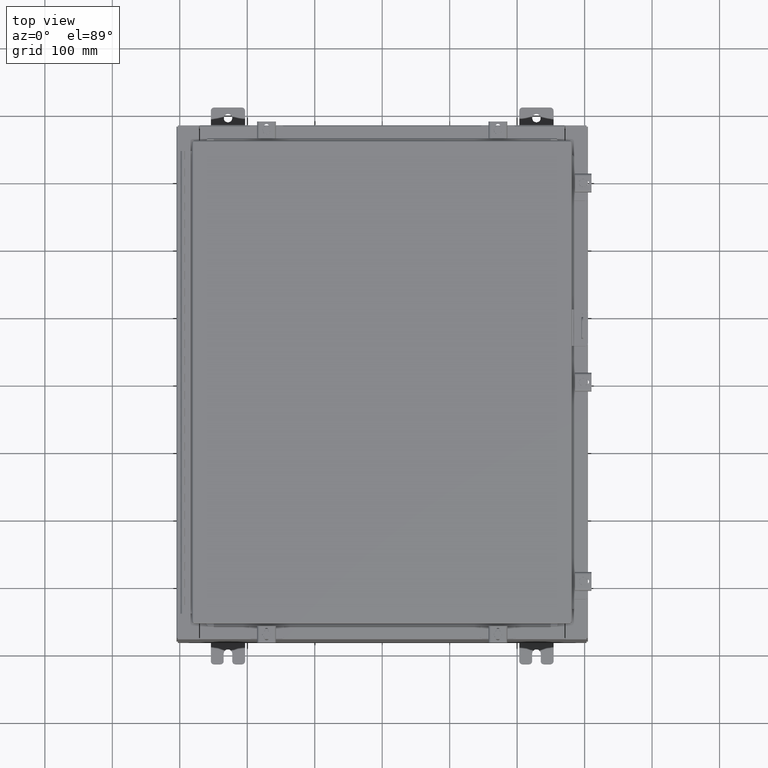
[diagram: clean part render]
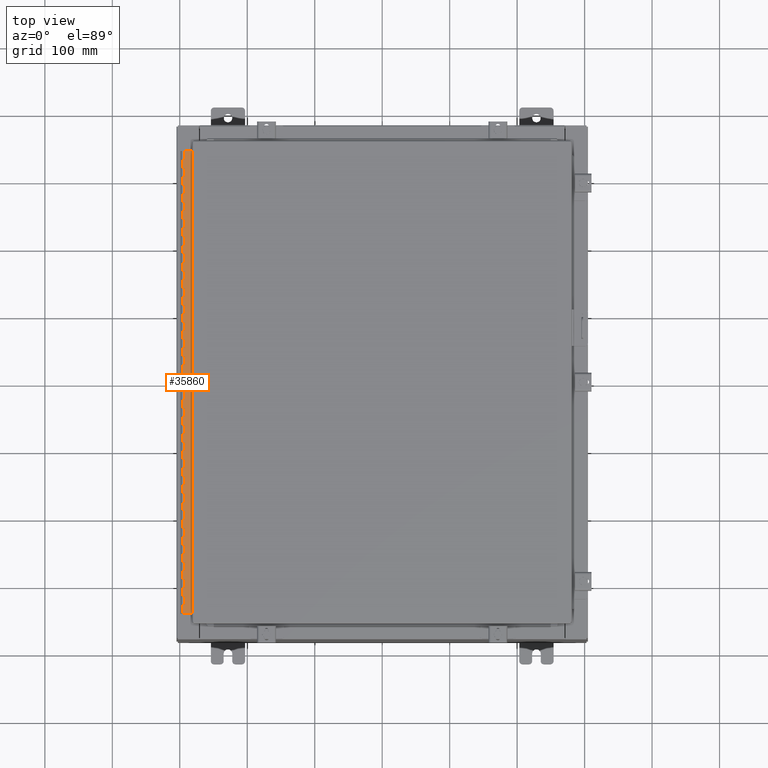
[diagram: same view with one face highlighted and labeled with its STEP entity id]
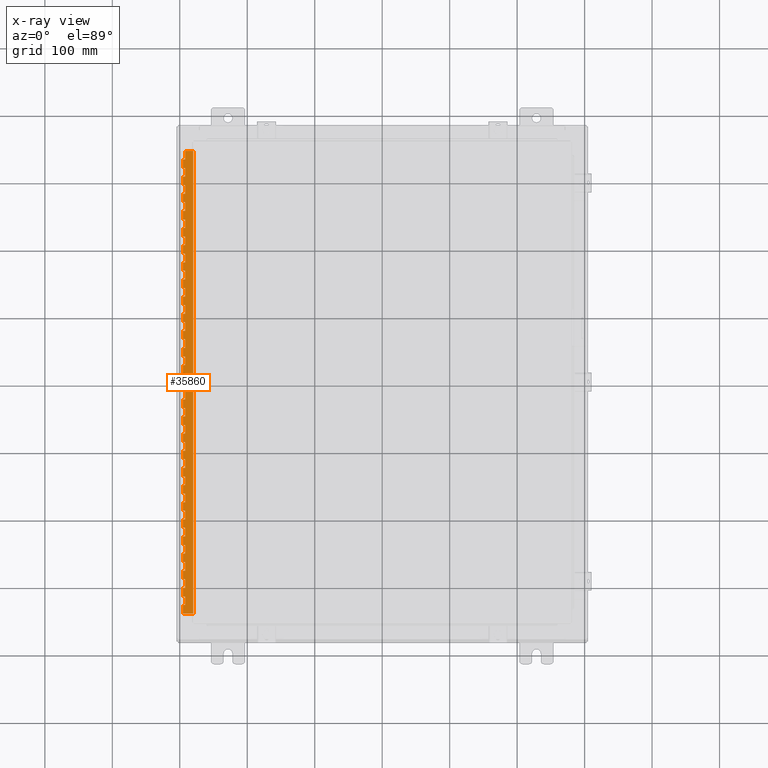
[diagram: x-ray of the same camera — body ghosted, the highlighted face saturated]
A machine part, top view. The second image highlights one B-rep face of the part: STEP entity #35860.
The next image is the same camera in x-ray: the body ghosted, the highlighted face saturated — about 0% of this face is hidden behind the body in this view.
In plain terms, the highlighted planar face has unit normal (-0, -0, 1).
Its self-contained STEP definition (entity closure, byte-faithful):
#19 = DIRECTION ( 'NONE',  ( -3.389037039080716000E-015, -1.000000000000000000, 7.373801606369459200E-031 ) ) ;
#56 = LINE ( 'NONE', #8384, #6963 ) ;
#223 = EDGE_CURVE ( 'NONE', #18209, #23399, #17543, .T. ) ;
#290 = EDGE_CURVE ( 'NONE', #19681, #35530, #22532, .T. ) ;
#363 = LINE ( 'NONE', #6745, #8217 ) ;
#390 = VERTEX_POINT ( 'NONE', #20826 ) ;
#405 = VECTOR ( 'NONE', #10906, 39.37007874015748100 ) ;
#422 = VERTEX_POINT ( 'NONE', #3414 ) ;
#501 = ORIENTED_EDGE ( 'NONE', *, *, #13562, .F. ) ;
#536 = VERTEX_POINT ( 'NONE', #30150 ) ;
#560 = ORIENTED_EDGE ( 'NONE', *, *, #36842, .F. ) ;
#569 = ORIENTED_EDGE ( 'NONE', *, *, #36905, .F. ) ;
#575 = VECTOR ( 'NONE', #19152, 39.37007874015748100 ) ;
#616 = DIRECTION ( 'NONE',  ( 3.389037039080716000E-015, 1.000000000000000000, -7.373801606369459200E-031 ) ) ;
#628 = ORIENTED_EDGE ( 'NONE', *, *, #29978, .F. ) ;
#667 = VERTEX_POINT ( 'NONE', #16559 ) ;
#753 = EDGE_CURVE ( 'NONE', #33988, #15730, #16581, .T. ) ;
#772 = EDGE_CURVE ( 'NONE', #35024, #12885, #56, .T. ) ;
#823 = VERTEX_POINT ( 'NONE', #5669 ) ;
#825 = VECTOR ( 'NONE', #34881, 39.37007874015748100 ) ;
#851 = VERTEX_POINT ( 'NONE', #11738 ) ;
#898 = VECTOR ( 'NONE', #12075, 39.37007874015748100 ) ;
#938 = CARTESIAN_POINT ( 'NONE',  ( -0.6869999999999987200, 0.6755000000000116500, -27.00000000000000000 ) ) ;
#968 = VERTEX_POINT ( 'NONE', #18046 ) ;
#1054 = VECTOR ( 'NONE', #14990, 39.37007874015748100 ) ;
#1069 = CARTESIAN_POINT ( 'NONE',  ( -0.6869999999999987200, 0.6755000000000029900, -9.000000000000001800 ) ) ;
#1109 = VERTEX_POINT ( 'NONE', #21621 ) ;
#1157 = VERTEX_POINT ( 'NONE', #24793 ) ;
#1199 = CARTESIAN_POINT ( 'NONE',  ( -0.6869999999999965000, 0.8005000000000001000, -9.000000000000010700 ) ) ;
#1224 = VECTOR ( 'NONE', #20714, 39.37007874015748100 ) ;
#1243 = CARTESIAN_POINT ( 'NONE',  ( -0.6869999999999987200, 0.6755000000000116500, -27.00000000000000000 ) ) ;
#1244 = VECTOR ( 'NONE', #3489, 39.37007874015748100 ) ;
#1298 = VERTEX_POINT ( 'NONE', #8213 ) ;
#1317 = LINE ( 'NONE', #33659, #31570 ) ;
#1438 = VERTEX_POINT ( 'NONE', #14726 ) ;
#1481 = ORIENTED_EDGE ( 'NONE', *, *, #37493, .T. ) ;
#1559 = CARTESIAN_POINT ( 'NONE',  ( -0.6869999999999987200, 0.5505000000000011000, -10.50000000000000200 ) ) ;
#1572 = CARTESIAN_POINT ( 'NONE',  ( -0.6869999999999987200, 0.6755000000000116500, -27.00000000000000000 ) ) ;
#1615 = EDGE_CURVE ( 'NONE', #7764, #33108, #16512, .T. ) ;
#1641 = CARTESIAN_POINT ( 'NONE',  ( -0.6869999999999965000, 0.5505000000000011000, -12.50000000000000900 ) ) ;
#1644 = VERTEX_POINT ( 'NONE', #27302 ) ;
#1748 = LINE ( 'NONE', #8586, #37957 ) ;
#1752 = EDGE_CURVE ( 'NONE', #26340, #18090, #9352, .T. ) ;
#1754 = LINE ( 'NONE', #30100, #23317 ) ;
#1764 = CARTESIAN_POINT ( 'NONE',  ( -0.6869999999999987200, 0.6755000000000116500, -27.00000000000000000 ) ) ;
#1774 = ORIENTED_EDGE ( 'NONE', *, *, #772, .F. ) ;
#1797 = VECTOR ( 'NONE', #29644, 39.37007874015748100 ) ;
#1801 = VECTOR ( 'NONE', #6892, 39.37007874015748100 ) ;
#1804 = CARTESIAN_POINT ( 'NONE',  ( -0.6869999999999987200, 0.5505000000000011000, -11.00000000000000000 ) ) ;
#1856 = DIRECTION ( 'NONE',  ( 2.435608044869875700E-028, 7.430000703649687600E-031, -1.000000000000000000 ) ) ;
#1857 = CARTESIAN_POINT ( 'NONE',  ( -0.6869999999999987200, 0.5505000000000011000, -3.499999999999999100 ) ) ;
#1860 = ORIENTED_EDGE ( 'NONE', *, *, #34878, .F. ) ;
#1866 = CARTESIAN_POINT ( 'NONE',  ( -0.6869999999999987200, 0.8005000000000088700, -12.00000000000000900 ) ) ;
#1950 = VECTOR ( 'NONE', #33602, 39.37007874015748100 ) ;
#2001 = DIRECTION ( 'NONE',  ( 2.435608044869875700E-028, 7.430000703649687600E-031, -1.000000000000000000 ) ) ;
#2048 = VERTEX_POINT ( 'NONE', #9995 ) ;
#2187 = CARTESIAN_POINT ( 'NONE',  ( -0.6869999999999987200, 0.5505000000000098700, -17.50000000000000000 ) ) ;
#2288 = ORIENTED_EDGE ( 'NONE', *, *, #33765, .F. ) ;
#2307 = CARTESIAN_POINT ( 'NONE',  ( -0.6869999999999965000, 0.8005000000000109800, -26.00000000000000000 ) ) ;
#2371 = VECTOR ( 'NONE', #24016, 39.37007874015748100 ) ;
#2418 = ORIENTED_EDGE ( 'NONE', *, *, #11744, .F. ) ;
#2449 = VERTEX_POINT ( 'NONE', #29096 ) ;
#2500 = CARTESIAN_POINT ( 'NONE',  ( -0.6869999999999987200, 0.6755000000000029900, -10.50000000000000200 ) ) ;
#2524 = ORIENTED_EDGE ( 'NONE', *, *, #28836, .F. ) ;
#2585 = CARTESIAN_POINT ( 'NONE',  ( -0.6869999999999987200, 0.6755000000000116500, -27.00000000000000000 ) ) ;
#2616 = VECTOR ( 'NONE', #28015, 39.37007874015748100 ) ;
#2658 = CARTESIAN_POINT ( 'NONE',  ( -0.6869999999999987200, 0.5505000000000011000, -6.500000000000009800 ) ) ;
#2666 = LINE ( 'NONE', #22941, #32001 ) ;
#2708 = DIRECTION ( 'NONE',  ( 3.389037039080716000E-015, 1.000000000000000000, -7.373801606369459200E-031 ) ) ;
#2752 = CARTESIAN_POINT ( 'NONE',  ( -0.6869999999999987200, 0.5505000000000098700, -22.00000000000000000 ) ) ;
#2763 = ORIENTED_EDGE ( 'NONE', *, *, #7890, .T. ) ;
#3115 = VECTOR ( 'NONE', #25032, 39.37007874015748100 ) ;
#3166 = EDGE_CURVE ( 'NONE', #12011, #33504, #20658, .T. ) ;
#3183 = ORIENTED_EDGE ( 'NONE', *, *, #1752, .T. ) ;
#3195 = VERTEX_POINT ( 'NONE', #12744 ) ;
#3198 = DIRECTION ( 'NONE',  ( 2.435608044869875700E-028, 7.430000703649687600E-031, -1.000000000000000000 ) ) ;
#3224 = ORIENTED_EDGE ( 'NONE', *, *, #16790, .T. ) ;
#3263 = VECTOR ( 'NONE', #22154, 39.37007874015748100 ) ;
#3326 = CARTESIAN_POINT ( 'NONE',  ( -0.6869999999999965000, 0.8005000000000109800, -19.50000000000001100 ) ) ;
#3351 = DIRECTION ( 'NONE',  ( -3.389037039080716000E-015, -1.000000000000000000, 7.373801606369459200E-031 ) ) ;
#3363 = CARTESIAN_POINT ( 'NONE',  ( -0.6869999999999987200, 0.5505000000000011000, -9.500000000000003600 ) ) ;
#3367 = VECTOR ( 'NONE', #6897, 39.37007874015748100 ) ;
#3399 = ORIENTED_EDGE ( 'NONE', *, *, #28458, .F. ) ;
#3406 = VECTOR ( 'NONE', #8415, 39.37007874015748100 ) ;
#3414 = CARTESIAN_POINT ( 'NONE',  ( -0.6869999999999987200, 0.5505000000000098700, -22.50000000000000400 ) ) ;
#3417 = DIRECTION ( 'NONE',  ( -3.389037039080716000E-015, -1.000000000000000000, 7.373801606369459200E-031 ) ) ;
#3469 = VECTOR ( 'NONE', #8769, 39.37007874015748100 ) ;
#3489 = DIRECTION ( 'NONE',  ( -2.435608044869875700E-028, -7.430000703649687600E-031, 1.000000000000000000 ) ) ;
#3554 = VERTEX_POINT ( 'NONE', #8171 ) ;
#3591 = VECTOR ( 'NONE', #9384, 39.37007874015748100 ) ;
#3598 = CARTESIAN_POINT ( 'NONE',  ( -0.6869999999999987200, 0.6755000000000007700, -3.000000000000001800 ) ) ;
#3601 = LINE ( 'NONE', #20202, #18268 ) ;
#3642 = VERTEX_POINT ( 'NONE', #14319 ) ;
#3649 = CARTESIAN_POINT ( 'NONE',  ( -0.6869999999999987200, 0.6755000000000095400, -20.00000000000000000 ) ) ;
#3667 = CARTESIAN_POINT ( 'NONE',  ( -0.6870000000000074900, 0.8005000000000109800, -20.00000000000000000 ) ) ;
#3693 = LINE ( 'NONE', #23821, #18355 ) ;
#3769 = DIRECTION ( 'NONE',  ( 2.435608044869875700E-028, 7.430000703649687600E-031, -1.000000000000000000 ) ) ;
#3783 = CARTESIAN_POINT ( 'NONE',  ( -0.6869999999999987200, 0.6755000000000095400, -21.50000000000000400 ) ) ;
#3838 = LINE ( 'NONE', #28291, #34089 ) ;
#3909 = CARTESIAN_POINT ( 'NONE',  ( -0.6869999999999987200, 0.8005000000000001000, -4.500000000000002700 ) ) ;
#3914 = CARTESIAN_POINT ( 'NONE',  ( -0.6869999999999987200, 0.5505000000000098700, -26.50000000000000400 ) ) ;
#3966 = VERTEX_POINT ( 'NONE', #4132 ) ;
#3997 = LINE ( 'NONE', #35336, #1224 ) ;
#4132 = CARTESIAN_POINT ( 'NONE',  ( -0.6869999999999987200, 0.5505000000000011000, -8.000000000000010700 ) ) ;
#4134 = CARTESIAN_POINT ( 'NONE',  ( -0.6869999999999987200, 0.6755000000000116500, -26.00000000000000000 ) ) ;
#4164 = DIRECTION ( 'NONE',  ( -3.389037039080716000E-015, -1.000000000000000000, 7.373801606369459200E-031 ) ) ;
#4200 = ORIENTED_EDGE ( 'NONE', *, *, #12164, .F. ) ;
#4219 = ORIENTED_EDGE ( 'NONE', *, *, #1615, .F. ) ;
#4238 = ORIENTED_EDGE ( 'NONE', *, *, #19455, .F. ) ;
#4332 = CARTESIAN_POINT ( 'NONE',  ( -0.6869999999999965000, 0.6755000000000116500, -24.50000000000000000 ) ) ;
#4350 = LINE ( 'NONE', #3909, #19947 ) ;
#4364 = CARTESIAN_POINT ( 'NONE',  ( -0.6869999999999987200, 0.8005000000000088700, -11.00000000000001100 ) ) ;
#4406 = CARTESIAN_POINT ( 'NONE',  ( -0.6869999999999987200, 0.5505000000000011000, -7.500000000000008900 ) ) ;
#4410 = EDGE_CURVE ( 'NONE', #28916, #19681, #34781, .T. ) ;
#4440 = VECTOR ( 'NONE', #6877, 39.37007874015748100 ) ;
#4574 = CARTESIAN_POINT ( 'NONE',  ( -0.6869999999999987200, 0.5505000000000011000, -8.500000000000010700 ) ) ;
#4639 = EDGE_CURVE ( 'NONE', #15775, #36855, #11899, .T. ) ;
#4685 = EDGE_CURVE ( 'NONE', #1109, #23399, #25557, .T. ) ;
#4702 = VERTEX_POINT ( 'NONE', #13721 ) ;
#4810 = VECTOR ( 'NONE', #37705, 39.37007874015748100 ) ;
#4834 = VERTEX_POINT ( 'NONE', #6270 ) ;
#4856 = EDGE_CURVE ( 'NONE', #13000, #13137, #27810, .T. ) ;
#4980 = VECTOR ( 'NONE', #20127, 39.37007874015748100 ) ;
#5085 = ORIENTED_EDGE ( 'NONE', *, *, #11897, .T. ) ;
#5132 = CARTESIAN_POINT ( 'NONE',  ( -0.6869999999999965000, 0.5505000000000098700, -20.50000000000000700 ) ) ;
#5135 = CARTESIAN_POINT ( 'NONE',  ( -0.6870000000000009400, 0.8005000000000001000, -1.500000000000000900 ) ) ;
#5140 = VERTEX_POINT ( 'NONE', #34140 ) ;
#5212 = EDGE_CURVE ( 'NONE', #21300, #20902, #29975, .T. ) ;
#5271 = EDGE_CURVE ( 'NONE', #851, #12011, #35974, .T. ) ;
#5290 = ORIENTED_EDGE ( 'NONE', *, *, #10998, .F. ) ;
#5293 = VERTEX_POINT ( 'NONE', #17386 ) ;
#5515 = CARTESIAN_POINT ( 'NONE',  ( -0.6869999999999987200, 0.6755000000000116500, -27.00000000000000000 ) ) ;
#5521 = LINE ( 'NONE', #11807, #35733 ) ;
#5631 = CARTESIAN_POINT ( 'NONE',  ( -0.6869999999999987200, 0.8005000000000088700, -13.50000000000001100 ) ) ;
#5634 = EDGE_CURVE ( 'NONE', #14992, #6831, #34568, .T. ) ;
#5669 = CARTESIAN_POINT ( 'NONE',  ( -0.6869999999999965000, 0.6755000000000095400, -22.50000000000000400 ) ) ;
#5719 = LINE ( 'NONE', #5631, #35041 ) ;
#5751 = CARTESIAN_POINT ( 'NONE',  ( -0.6869999999999987200, 0.6755000000000116500, -27.00000000000000000 ) ) ;
#5836 = EDGE_CURVE ( 'NONE', #34049, #13246, #3838, .T. ) ;
#5867 = CARTESIAN_POINT ( 'NONE',  ( -0.6869999999999965000, 0.5505000000000011000, -2.500000000000000000 ) ) ;
#5868 = ORIENTED_EDGE ( 'NONE', *, *, #36551, .T. ) ;
#5878 = VERTEX_POINT ( 'NONE', #16955 ) ;
#5995 = VERTEX_POINT ( 'NONE', #23190 ) ;
#5997 = LINE ( 'NONE', #1764, #20640 ) ;
#6045 = VECTOR ( 'NONE', #12292, 39.37007874015748100 ) ;
#6046 = ORIENTED_EDGE ( 'NONE', *, *, #14836, .F. ) ;
#6066 = EDGE_CURVE ( 'NONE', #10171, #20380, #11233, .T. ) ;
#6184 = VERTEX_POINT ( 'NONE', #18172 ) ;
#6233 = VERTEX_POINT ( 'NONE', #9778 ) ;
#6243 = CARTESIAN_POINT ( 'NONE',  ( -0.6869999999999965000, 0.5505000000000011000, -3.000000000000001800 ) ) ;
#6248 = DIRECTION ( 'NONE',  ( -3.389037039080716000E-015, -1.000000000000000000, 7.373801606369459200E-031 ) ) ;
#6253 = CARTESIAN_POINT ( 'NONE',  ( -0.6869999999999987200, 0.6755000000000095400, -11.00000000000000000 ) ) ;
#6270 = CARTESIAN_POINT ( 'NONE',  ( -0.6869999999999965000, 0.6755000000000095400, -22.00000000000000000 ) ) ;
#6288 = LINE ( 'NONE', #14708, #7222 ) ;
#6295 = LINE ( 'NONE', #33003, #12284 ) ;
#6377 = DIRECTION ( 'NONE',  ( 3.389037039080716000E-015, 1.000000000000000000, -7.373801606369459200E-031 ) ) ;
#6419 = CARTESIAN_POINT ( 'NONE',  ( -0.6870000000000030500, 0.07550000000000989300, -27.00000000000000000 ) ) ;
#6425 = VECTOR ( 'NONE', #11716, 39.37007874015748100 ) ;
#6429 = LINE ( 'NONE', #8603, #28834 ) ;
#6450 = CARTESIAN_POINT ( 'NONE',  ( -0.6869999999999965000, 0.8005000000000088700, -16.50000000000001100 ) ) ;
#6515 = CARTESIAN_POINT ( 'NONE',  ( -0.6869999999999987200, 0.6755000000000116500, -27.00000000000000000 ) ) ;
#6529 = ORIENTED_EDGE ( 'NONE', *, *, #21454, .F. ) ;
#6554 = LINE ( 'NONE', #34175, #19373 ) ;
#6718 = VECTOR ( 'NONE', #26475, 39.37007874015748100 ) ;
#6745 = CARTESIAN_POINT ( 'NONE',  ( -0.6869999999999965000, 0.5505000000000011000, -1.500000000000000900 ) ) ;
#6810 = EDGE_CURVE ( 'NONE', #22841, #20324, #11630, .T. ) ;
#6831 = VERTEX_POINT ( 'NONE', #7781 ) ;
#6877 = DIRECTION ( 'NONE',  ( -2.435608044869875700E-028, -7.430000703649687600E-031, 1.000000000000000000 ) ) ;
#6887 = VECTOR ( 'NONE', #18130, 39.37007874015748100 ) ;
#6892 = DIRECTION ( 'NONE',  ( 3.389037039080716000E-015, 1.000000000000000000, -7.373801606369459200E-031 ) ) ;
#6897 = DIRECTION ( 'NONE',  ( 2.435608044869875700E-028, 7.430000703649687600E-031, -1.000000000000000000 ) ) ;
#6963 = VECTOR ( 'NONE', #25861, 39.37007874015748100 ) ;
#7004 = ORIENTED_EDGE ( 'NONE', *, *, #25921, .T. ) ;
#7029 = VERTEX_POINT ( 'NONE', #14555 ) ;
#7052 = DIRECTION ( 'NONE',  ( -3.389037039080716000E-015, -1.000000000000000000, 7.373801606369459200E-031 ) ) ;
#7217 = ORIENTED_EDGE ( 'NONE', *, *, #5271, .F. ) ;
#7222 = VECTOR ( 'NONE', #32216, 39.37007874015748100 ) ;
#7231 = VECTOR ( 'NONE', #28472, 39.37007874015748100 ) ;
#7362 = PLANE ( 'NONE',  #18305 ) ;
#7387 = CARTESIAN_POINT ( 'NONE',  ( -0.6869999999999987200, 0.5505000000000098700, -19.00000000000001100 ) ) ;
#7514 = VERTEX_POINT ( 'NONE', #28523 ) ;
#7547 = EDGE_CURVE ( 'NONE', #1644, #17368, #11123, .T. ) ;
#7632 = LINE ( 'NONE', #15840, #37818 ) ;
#7643 = EDGE_CURVE ( 'NONE', #16593, #27749, #14298, .T. ) ;
#7681 = CARTESIAN_POINT ( 'NONE',  ( -0.6869999999999965000, 0.5505000000000098700, -21.50000000000000400 ) ) ;
#7701 = VECTOR ( 'NONE', #25201, 39.37007874015748100 ) ;
#7764 = VERTEX_POINT ( 'NONE', #30329 ) ;
#7781 = CARTESIAN_POINT ( 'NONE',  ( -0.6869999999999987200, 0.5505000000000098700, -16.00000000000000000 ) ) ;
#7890 = EDGE_CURVE ( 'NONE', #5878, #20628, #5997, .T. ) ;
#7905 = ORIENTED_EDGE ( 'NONE', *, *, #13330, .T. ) ;
#7935 = CARTESIAN_POINT ( 'NONE',  ( -0.6869999999999987200, 0.8005000000000088700, -11.50000000000001100 ) ) ;
#7946 = ORIENTED_EDGE ( 'NONE', *, *, #16041, .T. ) ;
#7969 = VERTEX_POINT ( 'NONE', #7979 ) ;
#7973 = DIRECTION ( 'NONE',  ( -3.389037039080716000E-015, -1.000000000000000000, 7.373801606369459200E-031 ) ) ;
#7979 = CARTESIAN_POINT ( 'NONE',  ( -0.6869999999999965000, 0.6755000000000116500, -25.50000000000000400 ) ) ;
#8071 = CARTESIAN_POINT ( 'NONE',  ( -0.6869999999999987200, 0.6755000000000116500, -27.00000000000000000 ) ) ;
#8072 = ORIENTED_EDGE ( 'NONE', *, *, #4639, .F. ) ;
#8075 = LINE ( 'NONE', #25419, #28605 ) ;
#8080 = DIRECTION ( 'NONE',  ( -3.389037039080716000E-015, -1.000000000000000000, 7.373801606369459200E-031 ) ) ;
#8171 = CARTESIAN_POINT ( 'NONE',  ( -0.6869999999999965000, 0.6755000000000095400, -14.50000000000001100 ) ) ;
#8213 = CARTESIAN_POINT ( 'NONE',  ( -0.6869999999999965000, 0.5505000000000011000, -1.999999999999998400 ) ) ;
#8217 = VECTOR ( 'NONE', #3769, 39.37007874015748100 ) ;
#8234 = EDGE_CURVE ( 'NONE', #11018, #35489, #17442, .T. ) ;
#8254 = ORIENTED_EDGE ( 'NONE', *, *, #9174, .F. ) ;
#8272 = EDGE_CURVE ( 'NONE', #6184, #17725, #9655, .T. ) ;
#8285 = EDGE_CURVE ( 'NONE', #34127, #5293, #16507, .T. ) ;
#8315 = CARTESIAN_POINT ( 'NONE',  ( -0.6869999999999987200, 0.5505000000000011000, -5.500000000000006200 ) ) ;
#8326 = CARTESIAN_POINT ( 'NONE',  ( -0.6869999999999987200, 0.5504999999999989900, -0.9999999999999992200 ) ) ;
#8384 = CARTESIAN_POINT ( 'NONE',  ( -0.6869999999999965000, 0.8005000000000001000, -0.9999999999999992200 ) ) ;
#8392 = ORIENTED_EDGE ( 'NONE', *, *, #9409, .F. ) ;
#8415 = DIRECTION ( 'NONE',  ( -2.435608044869875700E-028, -7.430000703649687600E-031, 1.000000000000000000 ) ) ;
#8491 = ORIENTED_EDGE ( 'NONE', *, *, #21088, .T. ) ;
#8534 = DIRECTION ( 'NONE',  ( -2.435608044869875700E-028, -7.430000703649687600E-031, 1.000000000000000000 ) ) ;
#8586 = CARTESIAN_POINT ( 'NONE',  ( -0.6869999999999965000, 0.8005000000000001000, -10.00000000000001100 ) ) ;
#8598 = LINE ( 'NONE', #30442, #23193 ) ;
#8603 = CARTESIAN_POINT ( 'NONE',  ( -0.6870000000000009400, 0.8005000000000001000, -1.999999999999998400 ) ) ;
#8605 = DIRECTION ( 'NONE',  ( -3.389037039080716000E-015, -1.000000000000000000, 7.373801606369459200E-031 ) ) ;
#8610 = EDGE_CURVE ( 'NONE', #19339, #28014, #21959, .T. ) ;
#8630 = LINE ( 'NONE', #34199, #36067 ) ;
#8633 = EDGE_LOOP ( 'NONE', ( #13440, #1481, #560, #9494, #5868, #20869, #34984, #33723, #31496, #13008, #15220, #21719, #8491, #4219, #32196, #20579, #23618, #34699, #12693, #27581, #16762, #23232, #11622, #30274, #14427, #3399, #34908, #8392, #36670, #31874, #10912, #26771, #19360, #24930, #7217, #11149, #28883, #13028, #20711, #19775, #7905, #569, #8072, #2418, #26301, #26618, #23555, #29126, #9173, #6529, #34977, #12071, #19289, #14307, #23396, #29965, #7946, #30867, #19318, #22162, #20873, #14642, #4200, #4238, #10883, #2288, #27483, #30277, #14893, #15229, #2524, #32572, #18814, #13591, #21884, #26143, #24348, #9455, #16506, #19267, #7004, #628, #6046, #24478, #2763, #26101, #5290, #36092, #3224, #501, #15831, #30655, #3183, #16271, #9432, #34894, #31816, #9226, #33440, #33424, #27768, #8254, #14741, #31832, #8717, #1774, #1860, #16732, #5085, #23533 ) ) ;
#8666 = VERTEX_POINT ( 'NONE', #34269 ) ;
#8717 = ORIENTED_EDGE ( 'NONE', *, *, #20329, .T. ) ;
#8746 = EDGE_CURVE ( 'NONE', #27534, #33988, #26119, .T. ) ;
#8769 = DIRECTION ( 'NONE',  ( 3.389037039080716000E-015, 1.000000000000000000, -7.373801606369459200E-031 ) ) ;
#8836 = LINE ( 'NONE', #36747, #23431 ) ;
#9025 = CARTESIAN_POINT ( 'NONE',  ( -0.6869999999999987200, 0.5505000000000098700, -19.50000000000001100 ) ) ;
#9046 = CARTESIAN_POINT ( 'NONE',  ( -0.6869999999999987200, 0.6755000000000095400, -19.00000000000001100 ) ) ;
#9127 = CARTESIAN_POINT ( 'NONE',  ( -0.6869999999999987200, 0.6755000000000007700, -8.500000000000010700 ) ) ;
#9173 = ORIENTED_EDGE ( 'NONE', *, *, #22620, .T. ) ;
#9174 = EDGE_CURVE ( 'NONE', #1298, #5293, #6429, .T. ) ;
#9220 = LINE ( 'NONE', #29146, #6425 ) ;
#9226 = ORIENTED_EDGE ( 'NONE', *, *, #34561, .F. ) ;
#9236 = EDGE_CURVE ( 'NONE', #35489, #23308, #5521, .T. ) ;
#9254 = CARTESIAN_POINT ( 'NONE',  ( -0.6869999999999965000, 0.8005000000000001000, -10.50000000000001100 ) ) ;
#9335 = EDGE_CURVE ( 'NONE', #3966, #13137, #26082, .T. ) ;
#9352 = LINE ( 'NONE', #1572, #575 ) ;
#9384 = DIRECTION ( 'NONE',  ( -2.435608044869875700E-028, -7.430000703649687600E-031, 1.000000000000000000 ) ) ;
#9392 = VERTEX_POINT ( 'NONE', #3649 ) ;
#9395 = DIRECTION ( 'NONE',  ( -3.389037039080716000E-015, -1.000000000000000000, 7.373801606369459200E-031 ) ) ;
#9409 = EDGE_CURVE ( 'NONE', #5995, #16593, #22419, .T. ) ;
#9432 = ORIENTED_EDGE ( 'NONE', *, *, #13183, .F. ) ;
#9455 = ORIENTED_EDGE ( 'NONE', *, *, #9335, .F. ) ;
#9494 = ORIENTED_EDGE ( 'NONE', *, *, #26544, .F. ) ;
#9520 = VECTOR ( 'NONE', #26770, 39.37007874015748100 ) ;
#9527 = LINE ( 'NONE', #22173, #2616 ) ;
#9629 = EDGE_CURVE ( 'NONE', #11018, #37138, #16032, .T. ) ;
#9655 = LINE ( 'NONE', #20951, #24262 ) ;
#9677 = EDGE_CURVE ( 'NONE', #19897, #33504, #28800, .T. ) ;
#9680 = CARTESIAN_POINT ( 'NONE',  ( -0.6870000000000030500, 0.07550000000000989300, -27.00000000000000000 ) ) ;
#9702 = CARTESIAN_POINT ( 'NONE',  ( -0.6869999999999987200, 0.6755000000000095400, -11.50000000000001100 ) ) ;
#9769 = VECTOR ( 'NONE', #17176, 39.37007874015748100 ) ;
#9778 = CARTESIAN_POINT ( 'NONE',  ( -0.6869999999999987200, 0.6755000000000007700, -0.4999999999999973900 ) ) ;
#9844 = DIRECTION ( 'NONE',  ( 3.389037039080716000E-015, 1.000000000000000000, -7.373801606369459200E-031 ) ) ;
#9852 = CARTESIAN_POINT ( 'NONE',  ( -0.6869999999999987200, 0.5505000000000098700, -17.00000000000000000 ) ) ;
#9856 = VECTOR ( 'NONE', #14420, 39.37007874015748100 ) ;
#9891 = EDGE_CURVE ( 'NONE', #20380, #28545, #1754, .T. ) ;
#9945 = VECTOR ( 'NONE', #37092, 39.37007874015748100 ) ;
#9995 = CARTESIAN_POINT ( 'NONE',  ( -0.6869999999999987200, 0.5505000000000011000, -7.000000000000011500 ) ) ;
#10020 = VERTEX_POINT ( 'NONE', #16195 ) ;
#10033 = DIRECTION ( 'NONE',  ( -2.435608044869875700E-028, -7.430000703649687600E-031, 1.000000000000000000 ) ) ;
#10091 = DIRECTION ( 'NONE',  ( 3.389037039080716000E-015, 1.000000000000000000, -7.373801606369459200E-031 ) ) ;
#10097 = VECTOR ( 'NONE', #25149, 39.37007874015748100 ) ;
#10170 = CARTESIAN_POINT ( 'NONE',  ( -0.6869999999999965000, 0.5505000000000011000, -12.50000000000000900 ) ) ;
#10171 = VERTEX_POINT ( 'NONE', #2187 ) ;
#10248 = VERTEX_POINT ( 'NONE', #25987 ) ;
#10328 = VECTOR ( 'NONE', #28052, 39.37007874015748100 ) ;
#10387 = EDGE_CURVE ( 'NONE', #19897, #3642, #14626, .T. ) ;
#10432 = EDGE_CURVE ( 'NONE', #6233, #24303, #12792, .T. ) ;
#10453 = DIRECTION ( 'NONE',  ( 1.000000000000000000, -3.369016658928390700E-015, -2.435608044869863200E-028 ) ) ;
#10480 = CARTESIAN_POINT ( 'NONE',  ( -0.6869999999999987200, 0.8005000000000088700, -14.50000000000001100 ) ) ;
#10688 = DIRECTION ( 'NONE',  ( -2.435608044869875700E-028, -7.430000703649687600E-031, 1.000000000000000000 ) ) ;
#10799 = LINE ( 'NONE', #2585, #20360 ) ;
#10883 = ORIENTED_EDGE ( 'NONE', *, *, #21121, .T. ) ;
#10906 = DIRECTION ( 'NONE',  ( -3.389037039080716000E-015, -1.000000000000000000, 7.373801606369459200E-031 ) ) ;
#10912 = ORIENTED_EDGE ( 'NONE', *, *, #29449, .F. ) ;
#10998 = EDGE_CURVE ( 'NONE', #26930, #667, #25493, .T. ) ;
#11018 = VERTEX_POINT ( 'NONE', #2500 ) ;
#11111 = EDGE_CURVE ( 'NONE', #20324, #28911, #6288, .T. ) ;
#11123 = LINE ( 'NONE', #5135, #32576 ) ;
#11149 = ORIENTED_EDGE ( 'NONE', *, *, #20588, .F. ) ;
#11233 = LINE ( 'NONE', #26488, #25803 ) ;
#11241 = LINE ( 'NONE', #36069, #3367 ) ;
#11268 = LINE ( 'NONE', #25121, #10328 ) ;
#11299 = CARTESIAN_POINT ( 'NONE',  ( -0.6869999999999987200, 0.6755000000000116500, -27.00000000000000000 ) ) ;
#11316 = VECTOR ( 'NONE', #8080, 39.37007874015748100 ) ;
#11331 = CARTESIAN_POINT ( 'NONE',  ( -0.6869999999999987200, 0.5505000000000098700, -26.00000000000000000 ) ) ;
#11356 = CARTESIAN_POINT ( 'NONE',  ( -0.6869999999999987200, 0.8005000000000109800, -23.00000000000000400 ) ) ;
#11362 = LINE ( 'NONE', #11356, #25924 ) ;
#11454 = CARTESIAN_POINT ( 'NONE',  ( -0.6869999999999965000, 0.6755000000000007700, -5.500000000000006200 ) ) ;
#11584 = CARTESIAN_POINT ( 'NONE',  ( -0.6869999999999987200, 0.5505000000000098700, -20.00000000000000000 ) ) ;
#11622 = ORIENTED_EDGE ( 'NONE', *, *, #19376, .F. ) ;
#11630 = LINE ( 'NONE', #16462, #34952 ) ;
#11708 = CARTESIAN_POINT ( 'NONE',  ( -0.6869999999999987200, 0.5505000000000098700, -14.50000000000001100 ) ) ;
#11716 = DIRECTION ( 'NONE',  ( 3.389037039080716000E-015, 1.000000000000000000, -7.373801606369459200E-031 ) ) ;
#11738 = CARTESIAN_POINT ( 'NONE',  ( -0.6869999999999987200, 0.5505000000000098700, -18.50000000000001100 ) ) ;
#11744 = EDGE_CURVE ( 'NONE', #29494, #15775, #24587, .T. ) ;
#11765 = VECTOR ( 'NONE', #22994, 39.37007874015748100 ) ;
#11775 = VERTEX_POINT ( 'NONE', #3598 ) ;
#11807 = CARTESIAN_POINT ( 'NONE',  ( -0.6869999999999987200, 0.5505000000000011000, -10.50000000000000200 ) ) ;
#11811 = VECTOR ( 'NONE', #16304, 39.37007874015748100 ) ;
#11897 = EDGE_CURVE ( 'NONE', #6233, #35530, #12281, .T. ) ;
#11899 = LINE ( 'NONE', #16266, #3115 ) ;
#11920 = VECTOR ( 'NONE', #4164, 39.37007874015748100 ) ;
#11936 = VERTEX_POINT ( 'NONE', #1069 ) ;
#12011 = VERTEX_POINT ( 'NONE', #7387 ) ;
#12039 = EDGE_CURVE ( 'NONE', #3554, #34090, #24108, .T. ) ;
#12071 = ORIENTED_EDGE ( 'NONE', *, *, #12039, .F. ) ;
#12075 = DIRECTION ( 'NONE',  ( -2.435608044869875700E-028, -7.430000703649687600E-031, 1.000000000000000000 ) ) ;
#12124 = EDGE_CURVE ( 'NONE', #18209, #27262, #14590, .T. ) ;
#12164 = EDGE_CURVE ( 'NONE', #21194, #1109, #13668, .T. ) ;
#12254 = VECTOR ( 'NONE', #14400, 39.37007874015748100 ) ;
#12281 = LINE ( 'NONE', #938, #4440 ) ;
#12284 = VECTOR ( 'NONE', #21335, 39.37007874015748100 ) ;
#12292 = DIRECTION ( 'NONE',  ( 3.389037039080716000E-015, 1.000000000000000000, -7.373801606369459200E-031 ) ) ;
#12429 = CARTESIAN_POINT ( 'NONE',  ( -0.6869999999999987200, 0.5505000000000098700, -15.50000000000001100 ) ) ;
#12691 = VECTOR ( 'NONE', #21749, 39.37007874015748100 ) ;
#12693 = ORIENTED_EDGE ( 'NONE', *, *, #37179, .F. ) ;
#12744 = CARTESIAN_POINT ( 'NONE',  ( -0.6869999999999987200, 0.6755000000000007700, -7.500000000000008900 ) ) ;
#12792 = LINE ( 'NONE', #32784, #19621 ) ;
#12885 = VERTEX_POINT ( 'NONE', #28895 ) ;
#12887 = VECTOR ( 'NONE', #2708, 39.37007874015748100 ) ;
#12923 = VECTOR ( 'NONE', #21377, 39.37007874015748100 ) ;
#12984 = EDGE_CURVE ( 'NONE', #24740, #31639, #3997, .T. ) ;
#13000 = VERTEX_POINT ( 'NONE', #9127 ) ;
#13008 = ORIENTED_EDGE ( 'NONE', *, *, #11111, .F. ) ;
#13028 = ORIENTED_EDGE ( 'NONE', *, *, #9891, .F. ) ;
#13068 = EDGE_CURVE ( 'NONE', #31103, #9392, #21846, .T. ) ;
#13106 = EDGE_CURVE ( 'NONE', #13458, #18090, #6295, .T. ) ;
#13137 = VERTEX_POINT ( 'NONE', #25025 ) ;
#13183 = EDGE_CURVE ( 'NONE', #17725, #13458, #25013, .T. ) ;
#13200 = VECTOR ( 'NONE', #18273, 39.37007874015748100 ) ;
#13246 = VERTEX_POINT ( 'NONE', #27641 ) ;
#13298 = VECTOR ( 'NONE', #14456, 39.37007874015748100 ) ;
#13302 = LINE ( 'NONE', #26059, #27862 ) ;
#13330 = EDGE_CURVE ( 'NONE', #22767, #16154, #15446, .T. ) ;
#13440 = ORIENTED_EDGE ( 'NONE', *, *, #4410, .F. ) ;
#13458 = VERTEX_POINT ( 'NONE', #31628 ) ;
#13545 = EDGE_CURVE ( 'NONE', #7969, #28911, #28654, .T. ) ;
#13549 = LINE ( 'NONE', #26805, #27200 ) ;
#13562 = EDGE_CURVE ( 'NONE', #36141, #8666, #34652, .T. ) ;
#13578 = LINE ( 'NONE', #20088, #11765 ) ;
#13591 = ORIENTED_EDGE ( 'NONE', *, *, #14495, .F. ) ;
#13668 = LINE ( 'NONE', #37165, #27318 ) ;
#13721 = CARTESIAN_POINT ( 'NONE',  ( -0.6869999999999987200, 0.5505000000000098700, -27.00000000000000000 ) ) ;
#13770 = DIRECTION ( 'NONE',  ( -3.389037039080716000E-015, -1.000000000000000000, 7.373801606369459200E-031 ) ) ;
#13842 = CARTESIAN_POINT ( 'NONE',  ( -0.6869999999999987200, 0.5505000000000011000, -9.000000000000001800 ) ) ;
#13924 = CARTESIAN_POINT ( 'NONE',  ( -0.6869999999999987200, 0.5505000000000098700, -24.50000000000000000 ) ) ;
#13954 = CARTESIAN_POINT ( 'NONE',  ( -0.6869999999999987200, 0.6755000000000095400, -17.99999999999999600 ) ) ;
#14017 = VECTOR ( 'NONE', #21701, 39.37007874015748100 ) ;
#14064 = EDGE_CURVE ( 'NONE', #17089, #22841, #19969, .T. ) ;
#14083 = VECTOR ( 'NONE', #10091, 39.37007874015748100 ) ;
#14164 = VECTOR ( 'NONE', #616, 39.37007874015748100 ) ;
#14219 = DIRECTION ( 'NONE',  ( -2.435608044869875700E-028, -7.430000703649687600E-031, 1.000000000000000000 ) ) ;
#14291 = CARTESIAN_POINT ( 'NONE',  ( -0.6869999999999987200, 0.5505000000000098700, -23.00000000000000400 ) ) ;
#14298 = LINE ( 'NONE', #29035, #36690 ) ;
#14307 = ORIENTED_EDGE ( 'NONE', *, *, #33426, .F. ) ;
#14319 = CARTESIAN_POINT ( 'NONE',  ( -0.6869999999999987200, 0.5505000000000098700, -19.50000000000001100 ) ) ;
#14400 = DIRECTION ( 'NONE',  ( -2.435608044869875700E-028, -7.430000703649687600E-031, 1.000000000000000000 ) ) ;
#14420 = DIRECTION ( 'NONE',  ( -3.389037039080716000E-015, -1.000000000000000000, 7.373801606369459200E-031 ) ) ;
#14427 = ORIENTED_EDGE ( 'NONE', *, *, #37323, .T. ) ;
#14430 = CARTESIAN_POINT ( 'NONE',  ( -0.6869999999999987200, 0.5505000000000098700, -23.50000000000000000 ) ) ;
#14456 = DIRECTION ( 'NONE',  ( -2.435608044869875700E-028, -7.430000703649687600E-031, 1.000000000000000000 ) ) ;
#14488 = DIRECTION ( 'NONE',  ( 2.435608044869875700E-028, 7.430000703649687600E-031, -1.000000000000000000 ) ) ;
#14495 = EDGE_CURVE ( 'NONE', #28014, #11936, #22647, .T. ) ;
#14555 = CARTESIAN_POINT ( 'NONE',  ( -0.6869999999999965000, 0.5505000000000098700, -21.50000000000000400 ) ) ;
#14590 = LINE ( 'NONE', #19530, #28233 ) ;
#14626 = LINE ( 'NONE', #3326, #36108 ) ;
#14628 = DIRECTION ( 'NONE',  ( 3.369016658928391100E-015, 1.000000000000000000, -7.450063841474529600E-031 ) ) ;
#14642 = ORIENTED_EDGE ( 'NONE', *, *, #4685, .F. ) ;
#14708 = CARTESIAN_POINT ( 'NONE',  ( -0.6869999999999965000, 0.8005000000000109800, -24.99999999999999600 ) ) ;
#14726 = CARTESIAN_POINT ( 'NONE',  ( -0.6869999999999987200, 0.5505000000000098700, -23.50000000000000000 ) ) ;
#14741 = ORIENTED_EDGE ( 'NONE', *, *, #35324, .F. ) ;
#14829 = EDGE_CURVE ( 'NONE', #28400, #24740, #5719, .T. ) ;
#14836 = EDGE_CURVE ( 'NONE', #24638, #2048, #34098, .T. ) ;
#14893 = ORIENTED_EDGE ( 'NONE', *, *, #9629, .T. ) ;
#14958 = CARTESIAN_POINT ( 'NONE',  ( -0.6869999999999965000, 0.8005000000000001000, -7.500000000000008900 ) ) ;
#14990 = DIRECTION ( 'NONE',  ( -2.435608044869875700E-028, -7.430000703649687600E-031, 1.000000000000000000 ) ) ;
#14992 = VERTEX_POINT ( 'NONE', #12429 ) ;
#15051 = LINE ( 'NONE', #32769, #14164 ) ;
#15053 = EDGE_CURVE ( 'NONE', #390, #36141, #11241, .T. ) ;
#15121 = VECTOR ( 'NONE', #28197, 39.37007874015748100 ) ;
#15220 = ORIENTED_EDGE ( 'NONE', *, *, #6810, .F. ) ;
#15229 = ORIENTED_EDGE ( 'NONE', *, *, #35058, .F. ) ;
#15446 = LINE ( 'NONE', #33710, #11811 ) ;
#15465 = LINE ( 'NONE', #33953, #7701 ) ;
#15561 = DIRECTION ( 'NONE',  ( 3.389037039080716000E-015, 1.000000000000000000, -7.373801606369459200E-031 ) ) ;
#15704 = VECTOR ( 'NONE', #14628, 39.37007874015748100 ) ;
#15730 = VERTEX_POINT ( 'NONE', #4134 ) ;
#15775 = VERTEX_POINT ( 'NONE', #16184 ) ;
#15831 = ORIENTED_EDGE ( 'NONE', *, *, #15053, .F. ) ;
#15840 = CARTESIAN_POINT ( 'NONE',  ( -0.6869999999999965000, 0.8005000000000088700, -17.00000000000001100 ) ) ;
#15948 = CARTESIAN_POINT ( 'NONE',  ( -0.6869999999999965000, 0.6755000000000095400, -23.99999999999999600 ) ) ;
#15964 = DIRECTION ( 'NONE',  ( 3.389037039080716000E-015, 1.000000000000000000, -7.373801606369459200E-031 ) ) ;
#16032 = LINE ( 'NONE', #17132, #22859 ) ;
#16041 = EDGE_CURVE ( 'NONE', #28400, #13246, #19005, .T. ) ;
#16154 = VERTEX_POINT ( 'NONE', #17707 ) ;
#16184 = CARTESIAN_POINT ( 'NONE',  ( -0.6869999999999987200, 0.5505000000000098700, -16.50000000000000000 ) ) ;
#16195 = CARTESIAN_POINT ( 'NONE',  ( -0.6869999999999965000, 0.6755000000000095400, -16.00000000000000000 ) ) ;
#16266 = CARTESIAN_POINT ( 'NONE',  ( -0.6869999999999987200, 0.5505000000000098700, -16.50000000000000000 ) ) ;
#16271 = ORIENTED_EDGE ( 'NONE', *, *, #13106, .F. ) ;
#16304 = DIRECTION ( 'NONE',  ( -2.435608044869875700E-028, -7.430000703649687600E-031, 1.000000000000000000 ) ) ;
#16346 = LINE ( 'NONE', #9025, #6718 ) ;
#16462 = CARTESIAN_POINT ( 'NONE',  ( -0.6869999999999987200, 0.5505000000000098700, -24.50000000000000000 ) ) ;
#16506 = ORIENTED_EDGE ( 'NONE', *, *, #33158, .F. ) ;
#16507 = LINE ( 'NONE', #35571, #898 ) ;
#16512 = LINE ( 'NONE', #24391, #1801 ) ;
#16559 = CARTESIAN_POINT ( 'NONE',  ( -0.6869999999999987200, 0.5505000000000011000, -6.000000000000012400 ) ) ;
#16574 = CARTESIAN_POINT ( 'NONE',  ( -0.6869999999999987200, 0.6755000000000095400, -21.00000000000000400 ) ) ;
#16581 = LINE ( 'NONE', #2307, #23423 ) ;
#16593 = VERTEX_POINT ( 'NONE', #5132 ) ;
#16639 = CARTESIAN_POINT ( 'NONE',  ( -0.6869999999999987200, 0.5504999999999989900, -0.4999999999999973900 ) ) ;
#16732 = ORIENTED_EDGE ( 'NONE', *, *, #10432, .F. ) ;
#16762 = ORIENTED_EDGE ( 'NONE', *, *, #35906, .T. ) ;
#16790 = EDGE_CURVE ( 'NONE', #24031, #8666, #32236, .T. ) ;
#16824 = EDGE_CURVE ( 'NONE', #6184, #11775, #22585, .T. ) ;
#16838 = VECTOR ( 'NONE', #32807, 39.37007874015748100 ) ;
#16859 = LINE ( 'NONE', #35644, #1244 ) ;
#16955 = CARTESIAN_POINT ( 'NONE',  ( -0.6869999999999965000, 0.6755000000000007700, -6.500000000000009800 ) ) ;
#17089 = VERTEX_POINT ( 'NONE', #4332 ) ;
#17132 = CARTESIAN_POINT ( 'NONE',  ( -0.6869999999999987200, 0.6755000000000116500, -27.00000000000000000 ) ) ;
#17176 = DIRECTION ( 'NONE',  ( -2.435608044869875700E-028, -7.430000703649687600E-031, 1.000000000000000000 ) ) ;
#17210 = LINE ( 'NONE', #5751, #34605 ) ;
#17247 = LINE ( 'NONE', #3914, #24057 ) ;
#17258 = DIRECTION ( 'NONE',  ( 2.435608044869875700E-028, 7.430000703649687600E-031, -1.000000000000000000 ) ) ;
#17300 = VECTOR ( 'NONE', #22356, 39.37007874015748100 ) ;
#17311 = LINE ( 'NONE', #3363, #9520 ) ;
#17368 = VERTEX_POINT ( 'NONE', #31835 ) ;
#17386 = CARTESIAN_POINT ( 'NONE',  ( -0.6869999999999987200, 0.6755000000000007700, -1.999999999999998400 ) ) ;
#17417 = LINE ( 'NONE', #4364, #23337 ) ;
#17428 = VECTOR ( 'NONE', #6377, 39.37007874015748100 ) ;
#17442 = LINE ( 'NONE', #9254, #1797 ) ;
#17543 = LINE ( 'NONE', #5515, #9769 ) ;
#17595 = CARTESIAN_POINT ( 'NONE',  ( -0.6869999999999987200, 0.8005000000000109800, -22.50000000000000400 ) ) ;
#17671 = CARTESIAN_POINT ( 'NONE',  ( -0.6869999999999987200, 0.6755000000000116500, -27.00000000000000000 ) ) ;
#17707 = CARTESIAN_POINT ( 'NONE',  ( -0.6869999999999987200, 0.6755000000000095400, -17.00000000000000000 ) ) ;
#17725 = VERTEX_POINT ( 'NONE', #35185 ) ;
#17736 = VECTOR ( 'NONE', #37578, 39.37007874015748100 ) ;
#17779 = EDGE_CURVE ( 'NONE', #3195, #2449, #37178, .T. ) ;
#17817 = EDGE_CURVE ( 'NONE', #19624, #4834, #35360, .T. ) ;
#18046 = CARTESIAN_POINT ( 'NONE',  ( -0.6869999999999987200, 0.6755000000000116500, -26.50000000000000400 ) ) ;
#18090 = VERTEX_POINT ( 'NONE', #36924 ) ;
#18130 = DIRECTION ( 'NONE',  ( -3.389037039080716000E-015, -1.000000000000000000, 7.373801606369459200E-031 ) ) ;
#18172 = CARTESIAN_POINT ( 'NONE',  ( -0.6869999999999965000, 0.6755000000000007700, -3.499999999999999100 ) ) ;
#18209 = VERTEX_POINT ( 'NONE', #22949 ) ;
#18268 = VECTOR ( 'NONE', #34917, 39.37007874015748100 ) ;
#18273 = DIRECTION ( 'NONE',  ( 3.389037039080716000E-015, 1.000000000000000000, -7.373801606369459200E-031 ) ) ;
#18305 = AXIS2_PLACEMENT_3D ( 'NONE', #24958, #10453, #30863 ) ;
#18355 = VECTOR ( 'NONE', #3351, 39.37007874015748100 ) ;
#18395 = VERTEX_POINT ( 'NONE', #35389 ) ;
#18502 = CARTESIAN_POINT ( 'NONE',  ( -0.6869999999999965000, 0.8005000000000001000, -6.000000000000012400 ) ) ;
#18663 = EDGE_CURVE ( 'NONE', #27262, #34049, #18865, .T. ) ;
#18728 = LINE ( 'NONE', #24620, #11920 ) ;
#18814 = ORIENTED_EDGE ( 'NONE', *, *, #28028, .T. ) ;
#18865 = LINE ( 'NONE', #1641, #3263 ) ;
#18953 = CARTESIAN_POINT ( 'NONE',  ( -0.6869999999999987200, 0.6755000000000116500, -27.00000000000000000 ) ) ;
#19005 = LINE ( 'NONE', #37550, #3406 ) ;
#19017 = EDGE_CURVE ( 'NONE', #6831, #10020, #9220, .T. ) ;
#19152 = DIRECTION ( 'NONE',  ( -2.435608044869875700E-028, -7.430000703649687600E-031, 1.000000000000000000 ) ) ;
#19267 = ORIENTED_EDGE ( 'NONE', *, *, #17779, .F. ) ;
#19283 = VECTOR ( 'NONE', #17258, 39.37007874015748100 ) ;
#19289 = ORIENTED_EDGE ( 'NONE', *, *, #19529, .T. ) ;
#19318 = ORIENTED_EDGE ( 'NONE', *, *, #18663, .F. ) ;
#19339 = VERTEX_POINT ( 'NONE', #4574 ) ;
#19360 = ORIENTED_EDGE ( 'NONE', *, *, #9677, .T. ) ;
#19373 = VECTOR ( 'NONE', #7973, 39.37007874015748100 ) ;
#19376 = EDGE_CURVE ( 'NONE', #7029, #19624, #34337, .T. ) ;
#19413 = LINE ( 'NONE', #30369, #34051 ) ;
#19455 = EDGE_CURVE ( 'NONE', #28395, #21194, #31577, .T. ) ;
#19529 = EDGE_CURVE ( 'NONE', #3554, #34317, #28795, .T. ) ;
#19530 = CARTESIAN_POINT ( 'NONE',  ( -0.6869999999999987200, 0.8005000000000088700, -12.50000000000000900 ) ) ;
#19596 = LINE ( 'NONE', #24536, #28239 ) ;
#19603 = EDGE_CURVE ( 'NONE', #37381, #26105, #3601, .T. ) ;
#19621 = VECTOR ( 'NONE', #9395, 39.37007874015748100 ) ;
#19624 = VERTEX_POINT ( 'NONE', #2752 ) ;
#19653 = DIRECTION ( 'NONE',  ( 2.435608044869875700E-028, 7.430000703649687600E-031, -1.000000000000000000 ) ) ;
#19681 = VERTEX_POINT ( 'NONE', #29354 ) ;
#19691 = CARTESIAN_POINT ( 'NONE',  ( -0.6869999999999965000, 0.8005000000000001000, -9.500000000000008900 ) ) ;
#19707 = CARTESIAN_POINT ( 'NONE',  ( -0.6869999999999965000, 0.8005000000000109800, -24.50000000000000000 ) ) ;
#19771 = CARTESIAN_POINT ( 'NONE',  ( -0.6869999999999987200, 0.6755000000000095400, -12.00000000000000900 ) ) ;
#19775 = ORIENTED_EDGE ( 'NONE', *, *, #22685, .F. ) ;
#19872 = DIRECTION ( 'NONE',  ( -3.389037039080716000E-015, -1.000000000000000000, 7.373801606369459200E-031 ) ) ;
#19897 = VERTEX_POINT ( 'NONE', #30754 ) ;
#19903 = CARTESIAN_POINT ( 'NONE',  ( -0.6869999999999965000, 0.6755000000000095400, -15.50000000000001100 ) ) ;
#19947 = VECTOR ( 'NONE', #24380, 39.37007874015748100 ) ;
#19969 = LINE ( 'NONE', #19707, #11316 ) ;
#19990 = LINE ( 'NONE', #23271, #28637 ) ;
#20041 = DIRECTION ( 'NONE',  ( -3.389037039080716000E-015, -1.000000000000000000, 7.373801606369459200E-031 ) ) ;
#20088 = CARTESIAN_POINT ( 'NONE',  ( -0.6869999999999965000, 0.8005000000000001000, -7.000000000000011500 ) ) ;
#20116 = VERTEX_POINT ( 'NONE', #19903 ) ;
#20127 = DIRECTION ( 'NONE',  ( -3.389037039080716000E-015, -1.000000000000000000, 7.373801606369459200E-031 ) ) ;
#20131 = VECTOR ( 'NONE', #1856, 39.37007874015748100 ) ;
#20162 = VERTEX_POINT ( 'NONE', #14291 ) ;
#20202 = CARTESIAN_POINT ( 'NONE',  ( -0.6869999999999965000, 0.5505000000000011000, -2.500000000000000000 ) ) ;
#20278 = CARTESIAN_POINT ( 'NONE',  ( -0.6869999999999987200, 0.8005000000000088700, -14.00000000000001100 ) ) ;
#20324 = VERTEX_POINT ( 'NONE', #29718 ) ;
#20329 = EDGE_CURVE ( 'NONE', #1644, #12885, #16859, .T. ) ;
#20360 = VECTOR ( 'NONE', #8534, 39.37007874015748100 ) ;
#20380 = VERTEX_POINT ( 'NONE', #32949 ) ;
#20490 = CARTESIAN_POINT ( 'NONE',  ( -0.6869999999999987200, 0.5505000000000011000, -5.000000000000000000 ) ) ;
#20579 = ORIENTED_EDGE ( 'NONE', *, *, #34302, .F. ) ;
#20588 = EDGE_CURVE ( 'NONE', #536, #851, #9527, .T. ) ;
#20628 = VERTEX_POINT ( 'NONE', #37025 ) ;
#20640 = VECTOR ( 'NONE', #10688, 39.37007874015748100 ) ;
#20658 = LINE ( 'NONE', #27119, #12923 ) ;
#20711 = ORIENTED_EDGE ( 'NONE', *, *, #6066, .F. ) ;
#20714 = DIRECTION ( 'NONE',  ( 2.435608044869875700E-028, 7.430000703649687600E-031, -1.000000000000000000 ) ) ;
#20826 = CARTESIAN_POINT ( 'NONE',  ( -0.6869999999999987200, 0.5505000000000011000, -4.500000000000002700 ) ) ;
#20869 = ORIENTED_EDGE ( 'NONE', *, *, #753, .F. ) ;
#20873 = ORIENTED_EDGE ( 'NONE', *, *, #223, .T. ) ;
#20902 = VERTEX_POINT ( 'NONE', #26606 ) ;
#20951 = CARTESIAN_POINT ( 'NONE',  ( -0.6869999999999987200, 0.8005000000000001000, -3.499999999999999100 ) ) ;
#21018 = VECTOR ( 'NONE', #14219, 39.37007874015748100 ) ;
#21088 = EDGE_CURVE ( 'NONE', #17089, #33108, #8598, .T. ) ;
#21121 = EDGE_CURVE ( 'NONE', #28395, #37467, #37854, .T. ) ;
#21194 = VERTEX_POINT ( 'NONE', #33924 ) ;
#21300 = VERTEX_POINT ( 'NONE', #22624 ) ;
#21335 = DIRECTION ( 'NONE',  ( 3.389037039080716000E-015, 1.000000000000000000, -7.373801606369459200E-031 ) ) ;
#21354 = VECTOR ( 'NONE', #33550, 39.37007874015748100 ) ;
#21377 = DIRECTION ( 'NONE',  ( 3.389037039080716000E-015, 1.000000000000000000, -7.373801606369459200E-031 ) ) ;
#21454 = EDGE_CURVE ( 'NONE', #5140, #24466, #19990, .T. ) ;
#21544 = DIRECTION ( 'NONE',  ( 2.435608044869875700E-028, 7.430000703649687600E-031, -1.000000000000000000 ) ) ;
#21621 = CARTESIAN_POINT ( 'NONE',  ( -0.6869999999999965000, 0.5505000000000011000, -12.00000000000000900 ) ) ;
#21686 = DIRECTION ( 'NONE',  ( -2.435608044869875700E-028, -7.430000703649687600E-031, 1.000000000000000000 ) ) ;
#21701 = DIRECTION ( 'NONE',  ( 3.389037039080716000E-015, 1.000000000000000000, -7.373801606369459200E-031 ) ) ;
#21702 = CARTESIAN_POINT ( 'NONE',  ( -0.6869999999999965000, 0.6755000000000095400, -15.00000000000000900 ) ) ;
#21719 = ORIENTED_EDGE ( 'NONE', *, *, #14064, .F. ) ;
#21749 = DIRECTION ( 'NONE',  ( -2.435608044869875700E-028, -7.430000703649687600E-031, 1.000000000000000000 ) ) ;
#21844 = CARTESIAN_POINT ( 'NONE',  ( -0.6870000000000009400, 0.8005000000000109800, -20.50000000000000700 ) ) ;
#21846 = LINE ( 'NONE', #3667, #13200 ) ;
#21884 = ORIENTED_EDGE ( 'NONE', *, *, #8610, .F. ) ;
#21937 = DIRECTION ( 'NONE',  ( 2.435608044869875700E-028, 7.430000703649687600E-031, -1.000000000000000000 ) ) ;
#21959 = LINE ( 'NONE', #25396, #15121 ) ;
#22052 = DIRECTION ( 'NONE',  ( -3.389037039080716000E-015, -1.000000000000000000, 7.373801606369459200E-031 ) ) ;
#22154 = DIRECTION ( 'NONE',  ( 2.435608044869875700E-028, 7.430000703649687600E-031, -1.000000000000000000 ) ) ;
#22162 = ORIENTED_EDGE ( 'NONE', *, *, #12124, .F. ) ;
#22173 = CARTESIAN_POINT ( 'NONE',  ( -0.6869999999999965000, 0.8005000000000088700, -18.50000000000001100 ) ) ;
#22212 = VECTOR ( 'NONE', #31575, 39.37007874015748100 ) ;
#22356 = DIRECTION ( 'NONE',  ( 2.435608044869875700E-028, 7.430000703649687600E-031, -1.000000000000000000 ) ) ;
#22419 = LINE ( 'NONE', #21844, #6887 ) ;
#22532 = LINE ( 'NONE', #29134, #15704 ) ;
#22585 = LINE ( 'NONE', #32507, #1054 ) ;
#22620 = EDGE_CURVE ( 'NONE', #20116, #24466, #19413, .T. ) ;
#22624 = CARTESIAN_POINT ( 'NONE',  ( -0.6869999999999987200, 0.6755000000000029900, -9.500000000000003600 ) ) ;
#22647 = LINE ( 'NONE', #1199, #14017 ) ;
#22685 = EDGE_CURVE ( 'NONE', #22767, #10171, #33142, .T. ) ;
#22767 = VERTEX_POINT ( 'NONE', #36912 ) ;
#22841 = VERTEX_POINT ( 'NONE', #13924 ) ;
#22859 = VECTOR ( 'NONE', #34651, 39.37007874015748100 ) ;
#22929 = EDGE_CURVE ( 'NONE', #5995, #9392, #10799, .T. ) ;
#22941 = CARTESIAN_POINT ( 'NONE',  ( -0.6869999999999965000, 0.8005000000000109800, -26.50000000000000400 ) ) ;
#22949 = CARTESIAN_POINT ( 'NONE',  ( -0.6869999999999987200, 0.6755000000000095400, -12.50000000000000900 ) ) ;
#22959 = EDGE_CURVE ( 'NONE', #36831, #7029, #26279, .T. ) ;
#22994 = DIRECTION ( 'NONE',  ( 3.389037039080716000E-015, 1.000000000000000000, -7.373801606369459200E-031 ) ) ;
#23040 = CARTESIAN_POINT ( 'NONE',  ( -0.6869999999999965000, 0.6755000000000095400, -14.00000000000001100 ) ) ;
#23101 = CARTESIAN_POINT ( 'NONE',  ( -0.6869999999999987200, 0.6755000000000116500, -27.00000000000000000 ) ) ;
#23121 = DIRECTION ( 'NONE',  ( 3.389037039080716000E-015, 1.000000000000000000, -7.373801606369459200E-031 ) ) ;
#23190 = CARTESIAN_POINT ( 'NONE',  ( -0.6869999999999987200, 0.6755000000000095400, -20.50000000000000700 ) ) ;
#23193 = VECTOR ( 'NONE', #10033, 39.37007874015748100 ) ;
#23232 = ORIENTED_EDGE ( 'NONE', *, *, #17817, .F. ) ;
#23271 = CARTESIAN_POINT ( 'NONE',  ( -0.6869999999999965000, 0.8005000000000088700, -15.00000000000000900 ) ) ;
#23279 = LINE ( 'NONE', #14430, #825 ) ;
#23304 = CARTESIAN_POINT ( 'NONE',  ( -0.6869999999999965000, 0.8005000000000001000, -5.000000000000000000 ) ) ;
#23308 = VERTEX_POINT ( 'NONE', #1804 ) ;
#23317 = VECTOR ( 'NONE', #15561, 39.37007874015748100 ) ;
#23318 = VERTEX_POINT ( 'NONE', #16574 ) ;
#23337 = VECTOR ( 'NONE', #27736, 39.37007874015748100 ) ;
#23396 = ORIENTED_EDGE ( 'NONE', *, *, #12984, .F. ) ;
#23399 = VERTEX_POINT ( 'NONE', #19771 ) ;
#23423 = VECTOR ( 'NONE', #34598, 39.37007874015748100 ) ;
#23431 = VECTOR ( 'NONE', #33817, 39.37007874015748100 ) ;
#23533 = ORIENTED_EDGE ( 'NONE', *, *, #290, .F. ) ;
#23535 = DIRECTION ( 'NONE',  ( -2.435608044869875700E-028, -7.430000703649687600E-031, 1.000000000000000000 ) ) ;
#23555 = ORIENTED_EDGE ( 'NONE', *, *, #5634, .F. ) ;
#23618 = ORIENTED_EDGE ( 'NONE', *, *, #36984, .T. ) ;
#23799 = DIRECTION ( 'NONE',  ( -3.389037039080716000E-015, -1.000000000000000000, 7.373801606369459200E-031 ) ) ;
#23821 = CARTESIAN_POINT ( 'NONE',  ( -0.6869999999999965000, 0.8005000000000001000, -6.500000000000009800 ) ) ;
#23919 = EDGE_CURVE ( 'NONE', #20116, #14992, #6554, .T. ) ;
#24016 = DIRECTION ( 'NONE',  ( -2.435608044869875700E-028, -7.430000703649687600E-031, 1.000000000000000000 ) ) ;
#24031 = VERTEX_POINT ( 'NONE', #11454 ) ;
#24057 = VECTOR ( 'NONE', #27298, 39.37007874015748100 ) ;
#24108 = LINE ( 'NONE', #10480, #30992 ) ;
#24220 = CARTESIAN_POINT ( 'NONE',  ( -0.6869999999999965000, 0.6755000000000116500, -24.99999999999999600 ) ) ;
#24245 = EDGE_CURVE ( 'NONE', #536, #28545, #33551, .T. ) ;
#24262 = VECTOR ( 'NONE', #3417, 39.37007874015748100 ) ;
#24303 = VERTEX_POINT ( 'NONE', #33136 ) ;
#24348 = ORIENTED_EDGE ( 'NONE', *, *, #4856, .T. ) ;
#24380 = DIRECTION ( 'NONE',  ( -3.389037039080716000E-015, -1.000000000000000000, 7.373801606369459200E-031 ) ) ;
#24391 = CARTESIAN_POINT ( 'NONE',  ( -0.6869999999999965000, 0.8005000000000109800, -23.99999999999999600 ) ) ;
#24466 = VERTEX_POINT ( 'NONE', #21702 ) ;
#24478 = ORIENTED_EDGE ( 'NONE', *, *, #24880, .F. ) ;
#24536 = CARTESIAN_POINT ( 'NONE',  ( -0.6869999999999965000, 0.8005000000000001000, -8.500000000000010700 ) ) ;
#24587 = LINE ( 'NONE', #6450, #16838 ) ;
#24620 = CARTESIAN_POINT ( 'NONE',  ( -0.6869999999999965000, 0.8005000000000109800, -25.50000000000000400 ) ) ;
#24638 = VERTEX_POINT ( 'NONE', #34236 ) ;
#24740 = VERTEX_POINT ( 'NONE', #34756 ) ;
#24793 = CARTESIAN_POINT ( 'NONE',  ( -0.6869999999999987200, 0.5505000000000011000, -10.00000000000000000 ) ) ;
#24880 = EDGE_CURVE ( 'NONE', #5878, #24638, #3693, .T. ) ;
#24910 = DIRECTION ( 'NONE',  ( -2.435608044869875700E-028, -7.430000703649687600E-031, 1.000000000000000000 ) ) ;
#24930 = ORIENTED_EDGE ( 'NONE', *, *, #3166, .F. ) ;
#24958 = CARTESIAN_POINT ( 'NONE',  ( -0.6870000000000030500, -0.6245000000000002800, -27.00000000000000000 ) ) ;
#24985 = CARTESIAN_POINT ( 'NONE',  ( -0.6869999999999965000, 0.6755000000000007700, -4.500000000000002700 ) ) ;
#25013 = LINE ( 'NONE', #1857, #17300 ) ;
#25025 = CARTESIAN_POINT ( 'NONE',  ( -0.6869999999999987200, 0.6755000000000007700, -8.000000000000010700 ) ) ;
#25032 = DIRECTION ( 'NONE',  ( 2.435608044869875700E-028, 7.430000703649687600E-031, -1.000000000000000000 ) ) ;
#25033 = FACE_OUTER_BOUND ( 'NONE', #8633, .T. ) ;
#25121 = CARTESIAN_POINT ( 'NONE',  ( -0.6869999999999987200, 0.5505000000000098700, -14.50000000000001100 ) ) ;
#25149 = DIRECTION ( 'NONE',  ( 2.435608044869875700E-028, 7.430000703649687600E-031, -1.000000000000000000 ) ) ;
#25201 = DIRECTION ( 'NONE',  ( -2.435608044869875700E-028, -7.430000703649687600E-031, 1.000000000000000000 ) ) ;
#25396 = CARTESIAN_POINT ( 'NONE',  ( -0.6869999999999987200, 0.5505000000000011000, -8.500000000000010700 ) ) ;
#25419 = CARTESIAN_POINT ( 'NONE',  ( -0.6869999999999987200, 0.5505000000000098700, -22.50000000000000400 ) ) ;
#25478 = DIRECTION ( 'NONE',  ( 3.389037039080716000E-015, 1.000000000000000000, -7.373801606369459200E-031 ) ) ;
#25493 = LINE ( 'NONE', #8315, #17736 ) ;
#25557 = LINE ( 'NONE', #1866, #32448 ) ;
#25803 = VECTOR ( 'NONE', #3198, 39.37007874015748100 ) ;
#25836 = VECTOR ( 'NONE', #21544, 39.37007874015748100 ) ;
#25861 = DIRECTION ( 'NONE',  ( 3.389037039080716000E-015, 1.000000000000000000, -7.373801606369459200E-031 ) ) ;
#25921 = EDGE_CURVE ( 'NONE', #3195, #33127, #13302, .T. ) ;
#25924 = VECTOR ( 'NONE', #28796, 39.37007874015748100 ) ;
#25987 = CARTESIAN_POINT ( 'NONE',  ( -0.6869999999999965000, 0.6755000000000095400, -23.50000000000000000 ) ) ;
#26059 = CARTESIAN_POINT ( 'NONE',  ( -0.6869999999999987200, 0.6755000000000116500, -27.00000000000000000 ) ) ;
#26080 = CARTESIAN_POINT ( 'NONE',  ( -0.6870000000000009400, 0.5505000000000011000, -13.00000000000000900 ) ) ;
#26082 = LINE ( 'NONE', #26814, #17428 ) ;
#26093 = DIRECTION ( 'NONE',  ( 2.435608044869875700E-028, 7.430000703649687600E-031, -1.000000000000000000 ) ) ;
#26101 = ORIENTED_EDGE ( 'NONE', *, *, #30198, .F. ) ;
#26105 = VERTEX_POINT ( 'NONE', #6243 ) ;
#26119 = LINE ( 'NONE', #34787, #19283 ) ;
#26143 = ORIENTED_EDGE ( 'NONE', *, *, #27818, .F. ) ;
#26187 = DIRECTION ( 'NONE',  ( -2.435608044869875700E-028, -7.430000703649687600E-031, 1.000000000000000000 ) ) ;
#26269 = EDGE_CURVE ( 'NONE', #7969, #27534, #18728, .T. ) ;
#26279 = LINE ( 'NONE', #31915, #9856 ) ;
#26281 = VECTOR ( 'NONE', #14488, 39.37007874015748100 ) ;
#26301 = ORIENTED_EDGE ( 'NONE', *, *, #34767, .T. ) ;
#26340 = VERTEX_POINT ( 'NONE', #24985 ) ;
#26475 = DIRECTION ( 'NONE',  ( 2.435608044869875700E-028, 7.430000703649687600E-031, -1.000000000000000000 ) ) ;
#26488 = CARTESIAN_POINT ( 'NONE',  ( -0.6869999999999987200, 0.5505000000000098700, -17.50000000000000000 ) ) ;
#26544 = EDGE_CURVE ( 'NONE', #968, #18395, #2666, .T. ) ;
#26560 = EDGE_CURVE ( 'NONE', #1438, #7764, #23279, .T. ) ;
#26606 = CARTESIAN_POINT ( 'NONE',  ( -0.6869999999999987200, 0.5505000000000011000, -9.500000000000003600 ) ) ;
#26618 = ORIENTED_EDGE ( 'NONE', *, *, #19017, .F. ) ;
#26633 = EDGE_CURVE ( 'NONE', #823, #422, #30119, .T. ) ;
#26764 = VECTOR ( 'NONE', #9844, 39.37007874015748100 ) ;
#26771 = ORIENTED_EDGE ( 'NONE', *, *, #10387, .F. ) ;
#26770 = DIRECTION ( 'NONE',  ( 2.435608044869875700E-028, 7.430000703649687600E-031, -1.000000000000000000 ) ) ;
#26805 = CARTESIAN_POINT ( 'NONE',  ( -0.6870000000000030500, -0.6245000000000002800, -27.00000000000000000 ) ) ;
#26814 = CARTESIAN_POINT ( 'NONE',  ( -0.6869999999999965000, 0.8005000000000001000, -8.000000000000010700 ) ) ;
#26825 = CARTESIAN_POINT ( 'NONE',  ( -0.6869999999999987200, 0.6755000000000116500, -27.00000000000000000 ) ) ;
#26930 = VERTEX_POINT ( 'NONE', #30713 ) ;
#27119 = CARTESIAN_POINT ( 'NONE',  ( -0.6869999999999965000, 0.8005000000000109800, -19.00000000000001100 ) ) ;
#27200 = VECTOR ( 'NONE', #32606, 39.37007874015748100 ) ;
#27235 = LINE ( 'NONE', #1243, #12691 ) ;
#27262 = VERTEX_POINT ( 'NONE', #10170 ) ;
#27298 = DIRECTION ( 'NONE',  ( 2.435608044869875700E-028, 7.430000703649687600E-031, -1.000000000000000000 ) ) ;
#27302 = CARTESIAN_POINT ( 'NONE',  ( -0.6869999999999987200, 0.6755000000000007700, -1.500000000000000900 ) ) ;
#27318 = VECTOR ( 'NONE', #19653, 39.37007874015748100 ) ;
#27483 = ORIENTED_EDGE ( 'NONE', *, *, #9236, .F. ) ;
#27534 = VERTEX_POINT ( 'NONE', #32012 ) ;
#27581 = ORIENTED_EDGE ( 'NONE', *, *, #26633, .F. ) ;
#27641 = CARTESIAN_POINT ( 'NONE',  ( -0.6869999999999987200, 0.6755000000000095400, -13.00000000000000900 ) ) ;
#27736 = DIRECTION ( 'NONE',  ( 3.389037039080716000E-015, 1.000000000000000000, -7.373801606369459200E-031 ) ) ;
#27749 = VERTEX_POINT ( 'NONE', #33014 ) ;
#27768 = ORIENTED_EDGE ( 'NONE', *, *, #8285, .T. ) ;
#27810 = LINE ( 'NONE', #26825, #34740 ) ;
#27818 = EDGE_CURVE ( 'NONE', #13000, #19339, #19596, .T. ) ;
#27862 = VECTOR ( 'NONE', #28736, 39.37007874015748100 ) ;
#28014 = VERTEX_POINT ( 'NONE', #13842 ) ;
#28015 = DIRECTION ( 'NONE',  ( -3.389037039080716000E-015, -1.000000000000000000, 7.373801606369459200E-031 ) ) ;
#28028 = EDGE_CURVE ( 'NONE', #21300, #11936, #36514, .T. ) ;
#28052 = DIRECTION ( 'NONE',  ( 2.435608044869875700E-028, 7.430000703649687600E-031, -1.000000000000000000 ) ) ;
#28197 = DIRECTION ( 'NONE',  ( 2.435608044869875700E-028, 7.430000703649687600E-031, -1.000000000000000000 ) ) ;
#28233 = VECTOR ( 'NONE', #37039, 39.37007874015748100 ) ;
#28239 = VECTOR ( 'NONE', #7052, 39.37007874015748100 ) ;
#28291 = CARTESIAN_POINT ( 'NONE',  ( -0.6869999999999987200, 0.8005000000000088700, -13.00000000000000900 ) ) ;
#28367 = LINE ( 'NONE', #20278, #12887 ) ;
#28395 = VERTEX_POINT ( 'NONE', #9702 ) ;
#28400 = VERTEX_POINT ( 'NONE', #30112 ) ;
#28458 = EDGE_CURVE ( 'NONE', #27749, #23318, #36483, .T. ) ;
#28472 = DIRECTION ( 'NONE',  ( -2.435608044869875700E-028, -7.430000703649687600E-031, 1.000000000000000000 ) ) ;
#28523 = CARTESIAN_POINT ( 'NONE',  ( -0.6869999999999965000, 0.6755000000000095400, -23.00000000000000400 ) ) ;
#28545 = VERTEX_POINT ( 'NONE', #13954 ) ;
#28605 = VECTOR ( 'NONE', #2001, 39.37007874015748100 ) ;
#28637 = VECTOR ( 'NONE', #34948, 39.37007874015748100 ) ;
#28654 = LINE ( 'NONE', #34851, #12254 ) ;
#28736 = DIRECTION ( 'NONE',  ( -2.435608044869875700E-028, -7.430000703649687600E-031, 1.000000000000000000 ) ) ;
#28795 = LINE ( 'NONE', #11299, #21018 ) ;
#28796 = DIRECTION ( 'NONE',  ( 3.389037039080716000E-015, 1.000000000000000000, -7.373801606369459200E-031 ) ) ;
#28800 = LINE ( 'NONE', #23101, #13298 ) ;
#28834 = VECTOR ( 'NONE', #34816, 39.37007874015748100 ) ;
#28836 = EDGE_CURVE ( 'NONE', #20902, #1157, #17311, .T. ) ;
#28883 = ORIENTED_EDGE ( 'NONE', *, *, #24245, .T. ) ;
#28895 = CARTESIAN_POINT ( 'NONE',  ( -0.6869999999999987200, 0.6755000000000007700, -0.9999999999999992200 ) ) ;
#28911 = VERTEX_POINT ( 'NONE', #24220 ) ;
#28916 = VERTEX_POINT ( 'NONE', #9680 ) ;
#29035 = CARTESIAN_POINT ( 'NONE',  ( -0.6869999999999965000, 0.5505000000000098700, -20.50000000000000700 ) ) ;
#29096 = CARTESIAN_POINT ( 'NONE',  ( -0.6869999999999987200, 0.5505000000000011000, -7.500000000000008900 ) ) ;
#29126 = ORIENTED_EDGE ( 'NONE', *, *, #23919, .F. ) ;
#29134 = CARTESIAN_POINT ( 'NONE',  ( -0.6870000000000030500, -0.6245000000000002800, 0.0000000000000000000 ) ) ;
#29146 = CARTESIAN_POINT ( 'NONE',  ( -0.6869999999999965000, 0.8005000000000088700, -16.00000000000001100 ) ) ;
#29207 = VECTOR ( 'NONE', #19, 39.37007874015748100 ) ;
#29221 = LINE ( 'NONE', #37634, #4980 ) ;
#29335 = EDGE_CURVE ( 'NONE', #20162, #7514, #11362, .T. ) ;
#29354 = CARTESIAN_POINT ( 'NONE',  ( -0.6870000000000009400, 0.07549999999999895700, 0.0000000000000000000 ) ) ;
#29396 = CARTESIAN_POINT ( 'NONE',  ( -0.6869999999999987200, 0.6755000000000007700, -2.500000000000000000 ) ) ;
#29449 = EDGE_CURVE ( 'NONE', #3642, #31103, #16346, .T. ) ;
#29494 = VERTEX_POINT ( 'NONE', #32525 ) ;
#29644 = DIRECTION ( 'NONE',  ( -3.389037039080716000E-015, -1.000000000000000000, 7.373801606369459200E-031 ) ) ;
#29718 = CARTESIAN_POINT ( 'NONE',  ( -0.6869999999999987200, 0.5505000000000098700, -24.99999999999999600 ) ) ;
#29746 = CARTESIAN_POINT ( 'NONE',  ( -0.6869999999999987200, 0.8005000000000109800, -22.00000000000000000 ) ) ;
#29965 = ORIENTED_EDGE ( 'NONE', *, *, #14829, .F. ) ;
#29975 = LINE ( 'NONE', #19691, #22212 ) ;
#29978 = EDGE_CURVE ( 'NONE', #2048, #33127, #13578, .T. ) ;
#30100 = CARTESIAN_POINT ( 'NONE',  ( -0.6869999999999965000, 0.8005000000000088700, -18.00000000000001100 ) ) ;
#30112 = CARTESIAN_POINT ( 'NONE',  ( -0.6869999999999965000, 0.6755000000000095400, -13.50000000000001100 ) ) ;
#30119 = LINE ( 'NONE', #17595, #29207 ) ;
#30150 = CARTESIAN_POINT ( 'NONE',  ( -0.6869999999999987200, 0.6755000000000095400, -18.50000000000001100 ) ) ;
#30192 = EDGE_CURVE ( 'NONE', #26340, #390, #4350, .T. ) ;
#30198 = EDGE_CURVE ( 'NONE', #667, #20628, #34597, .T. ) ;
#30274 = ORIENTED_EDGE ( 'NONE', *, *, #22959, .F. ) ;
#30277 = ORIENTED_EDGE ( 'NONE', *, *, #8234, .F. ) ;
#30329 = CARTESIAN_POINT ( 'NONE',  ( -0.6869999999999987200, 0.5505000000000098700, -23.99999999999999600 ) ) ;
#30357 = VECTOR ( 'NONE', #23535, 39.37007874015748100 ) ;
#30369 = CARTESIAN_POINT ( 'NONE',  ( -0.6869999999999987200, 0.6755000000000116500, -27.00000000000000000 ) ) ;
#30442 = CARTESIAN_POINT ( 'NONE',  ( -0.6869999999999987200, 0.6755000000000116500, -27.00000000000000000 ) ) ;
#30496 = CARTESIAN_POINT ( 'NONE',  ( -0.6869999999999987200, 0.8005000000000109800, -21.00000000000000400 ) ) ;
#30624 = CARTESIAN_POINT ( 'NONE',  ( -0.6869999999999965000, 0.8005000000000088700, -17.50000000000001100 ) ) ;
#30655 = ORIENTED_EDGE ( 'NONE', *, *, #30192, .F. ) ;
#30697 = LINE ( 'NONE', #4406, #37575 ) ;
#30713 = CARTESIAN_POINT ( 'NONE',  ( -0.6869999999999987200, 0.5505000000000011000, -5.500000000000006200 ) ) ;
#30754 = CARTESIAN_POINT ( 'NONE',  ( -0.6869999999999987200, 0.6755000000000095400, -19.50000000000001100 ) ) ;
#30863 = DIRECTION ( 'NONE',  ( 3.369016658928390700E-015, 1.000000000000000000, -7.450063841474528800E-031 ) ) ;
#30867 = ORIENTED_EDGE ( 'NONE', *, *, #5836, .F. ) ;
#30992 = VECTOR ( 'NONE', #22052, 39.37007874015748100 ) ;
#31023 = CARTESIAN_POINT ( 'NONE',  ( -0.6869999999999987200, 0.6755000000000007700, 0.0000000000000000000 ) ) ;
#31084 = DIRECTION ( 'NONE',  ( 3.389037039080716000E-015, 1.000000000000000000, -7.373801606369459200E-031 ) ) ;
#31103 = VERTEX_POINT ( 'NONE', #11584 ) ;
#31496 = ORIENTED_EDGE ( 'NONE', *, *, #13545, .T. ) ;
#31570 = VECTOR ( 'NONE', #24910, 39.37007874015748100 ) ;
#31575 = DIRECTION ( 'NONE',  ( -3.389037039080716000E-015, -1.000000000000000000, 7.373801606369459200E-031 ) ) ;
#31577 = LINE ( 'NONE', #7935, #405 ) ;
#31628 = CARTESIAN_POINT ( 'NONE',  ( -0.6869999999999987200, 0.5505000000000011000, -4.000000000000005300 ) ) ;
#31639 = VERTEX_POINT ( 'NONE', #33491 ) ;
#31816 = ORIENTED_EDGE ( 'NONE', *, *, #16824, .T. ) ;
#31832 = ORIENTED_EDGE ( 'NONE', *, *, #7547, .F. ) ;
#31835 = CARTESIAN_POINT ( 'NONE',  ( -0.6869999999999965000, 0.5505000000000011000, -1.500000000000000900 ) ) ;
#31874 = ORIENTED_EDGE ( 'NONE', *, *, #13068, .F. ) ;
#31915 = CARTESIAN_POINT ( 'NONE',  ( -0.6869999999999987200, 0.8005000000000109800, -21.50000000000000400 ) ) ;
#32001 = VECTOR ( 'NONE', #20041, 39.37007874015748100 ) ;
#32012 = CARTESIAN_POINT ( 'NONE',  ( -0.6869999999999987200, 0.5505000000000098700, -25.50000000000000400 ) ) ;
#32196 = ORIENTED_EDGE ( 'NONE', *, *, #26560, .F. ) ;
#32216 = DIRECTION ( 'NONE',  ( 3.389037039080716000E-015, 1.000000000000000000, -7.373801606369459200E-031 ) ) ;
#32236 = LINE ( 'NONE', #17671, #30357 ) ;
#32365 = EDGE_CURVE ( 'NONE', #34127, #37381, #8836, .T. ) ;
#32448 = VECTOR ( 'NONE', #31084, 39.37007874015748100 ) ;
#32507 = CARTESIAN_POINT ( 'NONE',  ( -0.6869999999999987200, 0.6755000000000116500, -27.00000000000000000 ) ) ;
#32525 = CARTESIAN_POINT ( 'NONE',  ( -0.6870000000000009400, 0.6755000000000095400, -16.50000000000000000 ) ) ;
#32572 = ORIENTED_EDGE ( 'NONE', *, *, #5212, .F. ) ;
#32576 = VECTOR ( 'NONE', #19872, 39.37007874015748100 ) ;
#32606 = DIRECTION ( 'NONE',  ( 3.369016658928391100E-015, 1.000000000000000000, -7.450063841474529600E-031 ) ) ;
#32769 = CARTESIAN_POINT ( 'NONE',  ( -0.6869999999999987200, 0.8005000000000001000, -3.000000000000001800 ) ) ;
#32784 = CARTESIAN_POINT ( 'NONE',  ( -0.6869999999999965000, 0.8005000000000001000, -0.4999999999999973900 ) ) ;
#32807 = DIRECTION ( 'NONE',  ( -3.389037039080716000E-015, -1.000000000000000000, 7.373801606369459200E-031 ) ) ;
#32949 = CARTESIAN_POINT ( 'NONE',  ( -0.6869999999999987200, 0.5505000000000098700, -17.99999999999999600 ) ) ;
#33003 = CARTESIAN_POINT ( 'NONE',  ( -0.6869999999999987200, 0.8005000000000001000, -4.000000000000005300 ) ) ;
#33014 = CARTESIAN_POINT ( 'NONE',  ( -0.6869999999999965000, 0.5505000000000098700, -21.00000000000000400 ) ) ;
#33108 = VERTEX_POINT ( 'NONE', #15948 ) ;
#33127 = VERTEX_POINT ( 'NONE', #33479 ) ;
#33136 = CARTESIAN_POINT ( 'NONE',  ( -0.6869999999999987200, 0.5504999999999989900, -0.4999999999999973900 ) ) ;
#33142 = LINE ( 'NONE', #30624, #1950 ) ;
#33158 = EDGE_CURVE ( 'NONE', #2449, #3966, #30697, .T. ) ;
#33277 = LINE ( 'NONE', #34161, #9945 ) ;
#33424 = ORIENTED_EDGE ( 'NONE', *, *, #32365, .F. ) ;
#33426 = EDGE_CURVE ( 'NONE', #31639, #34317, #28367, .T. ) ;
#33440 = ORIENTED_EDGE ( 'NONE', *, *, #19603, .F. ) ;
#33479 = CARTESIAN_POINT ( 'NONE',  ( -0.6869999999999987200, 0.6755000000000007700, -7.000000000000011500 ) ) ;
#33491 = CARTESIAN_POINT ( 'NONE',  ( -0.6869999999999987200, 0.5505000000000011000, -14.00000000000001100 ) ) ;
#33504 = VERTEX_POINT ( 'NONE', #9046 ) ;
#33550 = DIRECTION ( 'NONE',  ( -2.435608044869875700E-028, -7.430000703649687600E-031, 1.000000000000000000 ) ) ;
#33551 = LINE ( 'NONE', #6515, #2371 ) ;
#33602 = DIRECTION ( 'NONE',  ( -3.389037039080716000E-015, -1.000000000000000000, 7.373801606369459200E-031 ) ) ;
#33659 = CARTESIAN_POINT ( 'NONE',  ( -0.6869999999999987200, 0.6755000000000116500, -27.00000000000000000 ) ) ;
#33710 = CARTESIAN_POINT ( 'NONE',  ( -0.6869999999999987200, 0.6755000000000116500, -27.00000000000000000 ) ) ;
#33723 = ORIENTED_EDGE ( 'NONE', *, *, #26269, .F. ) ;
#33765 = EDGE_CURVE ( 'NONE', #23308, #37467, #17417, .T. ) ;
#33817 = DIRECTION ( 'NONE',  ( -3.389037039080716000E-015, -1.000000000000000000, 7.373801606369459200E-031 ) ) ;
#33924 = CARTESIAN_POINT ( 'NONE',  ( -0.6869999999999965000, 0.5505000000000011000, -11.50000000000001100 ) ) ;
#33953 = CARTESIAN_POINT ( 'NONE',  ( -0.6869999999999987200, 0.6755000000000116500, -27.00000000000000000 ) ) ;
#33984 = DIRECTION ( 'NONE',  ( 2.435608044869875700E-028, 7.430000703649687600E-031, -1.000000000000000000 ) ) ;
#33988 = VERTEX_POINT ( 'NONE', #11331 ) ;
#34038 = CARTESIAN_POINT ( 'NONE',  ( -0.6869999999999987200, 0.6755000000000029900, -10.00000000000000000 ) ) ;
#34049 = VERTEX_POINT ( 'NONE', #26080 ) ;
#34051 = VECTOR ( 'NONE', #21686, 39.37007874015748100 ) ;
#34089 = VECTOR ( 'NONE', #25478, 39.37007874015748100 ) ;
#34090 = VERTEX_POINT ( 'NONE', #11708 ) ;
#34098 = LINE ( 'NONE', #2658, #26281 ) ;
#34127 = VERTEX_POINT ( 'NONE', #29396 ) ;
#34140 = CARTESIAN_POINT ( 'NONE',  ( -0.6869999999999987200, 0.5505000000000098700, -15.00000000000000900 ) ) ;
#34161 = CARTESIAN_POINT ( 'NONE',  ( -0.6869999999999987200, 0.6755000000000116500, -27.00000000000000000 ) ) ;
#34175 = CARTESIAN_POINT ( 'NONE',  ( -0.6869999999999965000, 0.8005000000000088700, -15.50000000000001100 ) ) ;
#34199 = CARTESIAN_POINT ( 'NONE',  ( -0.6869999999999965000, 0.8005000000000001000, -5.500000000000006200 ) ) ;
#34236 = CARTESIAN_POINT ( 'NONE',  ( -0.6869999999999987200, 0.5505000000000011000, -6.500000000000009800 ) ) ;
#34269 = CARTESIAN_POINT ( 'NONE',  ( -0.6869999999999965000, 0.6755000000000007700, -5.000000000000000000 ) ) ;
#34302 = EDGE_CURVE ( 'NONE', #10248, #1438, #29221, .T. ) ;
#34317 = VERTEX_POINT ( 'NONE', #23040 ) ;
#34337 = LINE ( 'NONE', #7681, #10097 ) ;
#34561 = EDGE_CURVE ( 'NONE', #26105, #11775, #15051, .T. ) ;
#34568 = LINE ( 'NONE', #36164, #25836 ) ;
#34597 = LINE ( 'NONE', #18502, #26764 ) ;
#34598 = DIRECTION ( 'NONE',  ( 3.389037039080716000E-015, 1.000000000000000000, -7.373801606369459200E-031 ) ) ;
#34605 = VECTOR ( 'NONE', #26187, 39.37007874015748100 ) ;
#34651 = DIRECTION ( 'NONE',  ( -2.435608044869875700E-028, -7.430000703649687600E-031, 1.000000000000000000 ) ) ;
#34652 = LINE ( 'NONE', #23304, #3469 ) ;
#34699 = ORIENTED_EDGE ( 'NONE', *, *, #29335, .F. ) ;
#34740 = VECTOR ( 'NONE', #35574, 39.37007874015748100 ) ;
#34756 = CARTESIAN_POINT ( 'NONE',  ( -0.6869999999999987200, 0.5505000000000011000, -13.50000000000001100 ) ) ;
#34767 = EDGE_CURVE ( 'NONE', #29494, #10020, #1317, .T. ) ;
#34781 = LINE ( 'NONE', #6419, #3591 ) ;
#34787 = CARTESIAN_POINT ( 'NONE',  ( -0.6869999999999987200, 0.5505000000000098700, -25.50000000000000400 ) ) ;
#34816 = DIRECTION ( 'NONE',  ( 3.389037039080716000E-015, 1.000000000000000000, -7.373801606369459200E-031 ) ) ;
#34851 = CARTESIAN_POINT ( 'NONE',  ( -0.6869999999999987200, 0.6755000000000116500, -27.00000000000000000 ) ) ;
#34878 = EDGE_CURVE ( 'NONE', #24303, #35024, #36608, .T. ) ;
#34881 = DIRECTION ( 'NONE',  ( 2.435608044869875700E-028, 7.430000703649687600E-031, -1.000000000000000000 ) ) ;
#34894 = ORIENTED_EDGE ( 'NONE', *, *, #8272, .F. ) ;
#34908 = ORIENTED_EDGE ( 'NONE', *, *, #7643, .F. ) ;
#34917 = DIRECTION ( 'NONE',  ( 2.435608044869875700E-028, 7.430000703649687600E-031, -1.000000000000000000 ) ) ;
#34948 = DIRECTION ( 'NONE',  ( 3.389037039080716000E-015, 1.000000000000000000, -7.373801606369459200E-031 ) ) ;
#34952 = VECTOR ( 'NONE', #33984, 39.37007874015748100 ) ;
#34977 = ORIENTED_EDGE ( 'NONE', *, *, #37798, .F. ) ;
#34984 = ORIENTED_EDGE ( 'NONE', *, *, #8746, .F. ) ;
#35024 = VERTEX_POINT ( 'NONE', #8326 ) ;
#35041 = VECTOR ( 'NONE', #8605, 39.37007874015748100 ) ;
#35058 = EDGE_CURVE ( 'NONE', #1157, #37138, #1748, .T. ) ;
#35185 = CARTESIAN_POINT ( 'NONE',  ( -0.6869999999999987200, 0.5505000000000011000, -3.499999999999999100 ) ) ;
#35324 = EDGE_CURVE ( 'NONE', #17368, #1298, #363, .T. ) ;
#35336 = CARTESIAN_POINT ( 'NONE',  ( -0.6869999999999987200, 0.5505000000000011000, -13.50000000000001100 ) ) ;
#35360 = LINE ( 'NONE', #29746, #6045 ) ;
#35389 = CARTESIAN_POINT ( 'NONE',  ( -0.6869999999999987200, 0.5505000000000098700, -26.50000000000000400 ) ) ;
#35489 = VERTEX_POINT ( 'NONE', #1559 ) ;
#35530 = VERTEX_POINT ( 'NONE', #31023 ) ;
#35571 = CARTESIAN_POINT ( 'NONE',  ( -0.6869999999999987200, 0.6755000000000116500, -27.00000000000000000 ) ) ;
#35574 = DIRECTION ( 'NONE',  ( -2.435608044869875700E-028, -7.430000703649687600E-031, 1.000000000000000000 ) ) ;
#35644 = CARTESIAN_POINT ( 'NONE',  ( -0.6869999999999987200, 0.6755000000000116500, -27.00000000000000000 ) ) ;
#35733 = VECTOR ( 'NONE', #37983, 39.37007874015748100 ) ;
#35860 = ADVANCED_FACE ( 'NONE', ( #25033 ), #7362, .T. ) ;
#35906 = EDGE_CURVE ( 'NONE', #823, #4834, #15465, .T. ) ;
#35967 = EDGE_CURVE ( 'NONE', #24031, #26930, #8630, .T. ) ;
#35974 = LINE ( 'NONE', #37576, #4810 ) ;
#36067 = VECTOR ( 'NONE', #13770, 39.37007874015748100 ) ;
#36069 = CARTESIAN_POINT ( 'NONE',  ( -0.6869999999999987200, 0.5505000000000011000, -4.500000000000002700 ) ) ;
#36092 = ORIENTED_EDGE ( 'NONE', *, *, #35967, .F. ) ;
#36108 = VECTOR ( 'NONE', #23799, 39.37007874015748100 ) ;
#36141 = VERTEX_POINT ( 'NONE', #20490 ) ;
#36164 = CARTESIAN_POINT ( 'NONE',  ( -0.6869999999999987200, 0.5505000000000098700, -15.50000000000001100 ) ) ;
#36270 = VECTOR ( 'NONE', #6248, 39.37007874015748100 ) ;
#36483 = LINE ( 'NONE', #30496, #14083 ) ;
#36514 = LINE ( 'NONE', #8071, #7231 ) ;
#36551 = EDGE_CURVE ( 'NONE', #968, #15730, #33277, .T. ) ;
#36608 = LINE ( 'NONE', #16639, #20131 ) ;
#36670 = ORIENTED_EDGE ( 'NONE', *, *, #22929, .T. ) ;
#36690 = VECTOR ( 'NONE', #26093, 39.37007874015748100 ) ;
#36747 = CARTESIAN_POINT ( 'NONE',  ( -0.6869999999999987200, 0.8005000000000001000, -2.500000000000000000 ) ) ;
#36831 = VERTEX_POINT ( 'NONE', #3783 ) ;
#36842 = EDGE_CURVE ( 'NONE', #18395, #4702, #17247, .T. ) ;
#36855 = VERTEX_POINT ( 'NONE', #9852 ) ;
#36905 = EDGE_CURVE ( 'NONE', #36855, #16154, #7632, .T. ) ;
#36912 = CARTESIAN_POINT ( 'NONE',  ( -0.6869999999999987200, 0.6755000000000095400, -17.50000000000000000 ) ) ;
#36924 = CARTESIAN_POINT ( 'NONE',  ( -0.6869999999999965000, 0.6755000000000007700, -4.000000000000005300 ) ) ;
#36984 = EDGE_CURVE ( 'NONE', #10248, #7514, #27235, .T. ) ;
#37025 = CARTESIAN_POINT ( 'NONE',  ( -0.6869999999999965000, 0.6755000000000007700, -6.000000000000012400 ) ) ;
#37039 = DIRECTION ( 'NONE',  ( -3.389037039080716000E-015, -1.000000000000000000, 7.373801606369459200E-031 ) ) ;
#37092 = DIRECTION ( 'NONE',  ( -2.435608044869875700E-028, -7.430000703649687600E-031, 1.000000000000000000 ) ) ;
#37138 = VERTEX_POINT ( 'NONE', #34038 ) ;
#37165 = CARTESIAN_POINT ( 'NONE',  ( -0.6869999999999965000, 0.5505000000000011000, -11.50000000000001100 ) ) ;
#37178 = LINE ( 'NONE', #14958, #36270 ) ;
#37179 = EDGE_CURVE ( 'NONE', #422, #20162, #8075, .T. ) ;
#37323 = EDGE_CURVE ( 'NONE', #36831, #23318, #17210, .T. ) ;
#37381 = VERTEX_POINT ( 'NONE', #5867 ) ;
#37467 = VERTEX_POINT ( 'NONE', #6253 ) ;
#37493 = EDGE_CURVE ( 'NONE', #28916, #4702, #13549, .T. ) ;
#37550 = CARTESIAN_POINT ( 'NONE',  ( -0.6869999999999987200, 0.6755000000000116500, -27.00000000000000000 ) ) ;
#37575 = VECTOR ( 'NONE', #21937, 39.37007874015748100 ) ;
#37576 = CARTESIAN_POINT ( 'NONE',  ( -0.6869999999999987200, 0.5505000000000098700, -18.50000000000001100 ) ) ;
#37578 = DIRECTION ( 'NONE',  ( 2.435608044869875700E-028, 7.430000703649687600E-031, -1.000000000000000000 ) ) ;
#37634 = CARTESIAN_POINT ( 'NONE',  ( -0.6869999999999987200, 0.8005000000000109800, -23.50000000000000000 ) ) ;
#37705 = DIRECTION ( 'NONE',  ( 2.435608044869875700E-028, 7.430000703649687600E-031, -1.000000000000000000 ) ) ;
#37798 = EDGE_CURVE ( 'NONE', #34090, #5140, #11268, .T. ) ;
#37818 = VECTOR ( 'NONE', #15964, 39.37007874015748100 ) ;
#37854 = LINE ( 'NONE', #18953, #21354 ) ;
#37957 = VECTOR ( 'NONE', #23121, 39.37007874015748100 ) ;
#37983 = DIRECTION ( 'NONE',  ( 2.435608044869875700E-028, 7.430000703649687600E-031, -1.000000000000000000 ) ) ;